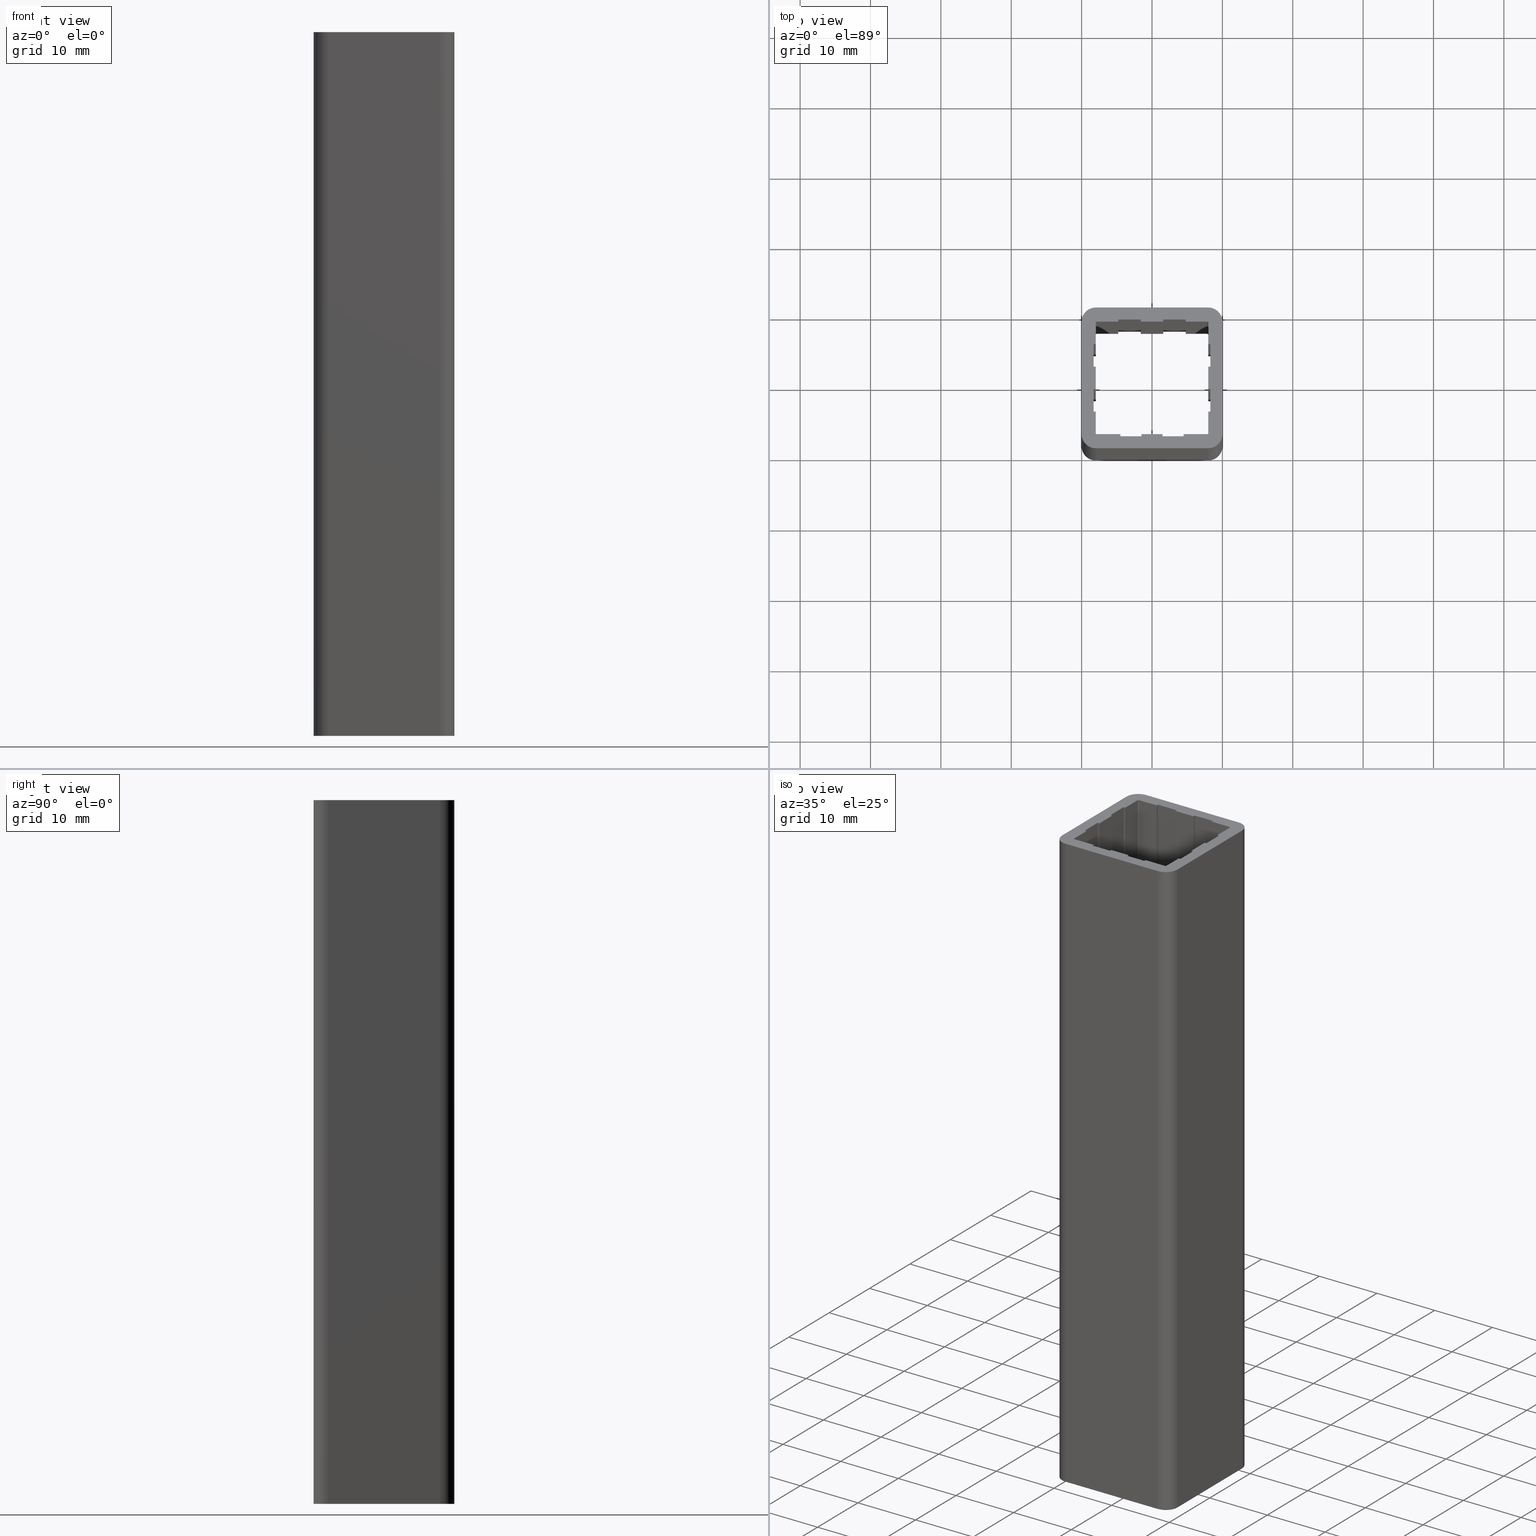
[diagram: canonical four-view strip — front | top / right | iso, engineering-drawing reading convention]
A machine part, canonical four-view strip (front | top / right | iso — engineering-drawing reading convention). The complete STEP part file that produces these views, byte-faithful:
ISO-10303-21;
HEADER;
/****************************************************************
 * Generated by software with PDE/Lib inside                    *
 * PDElib Version v4.4, created Mon 02/23/2004                  *
 * International Technegroup Inc. (www.iti-oh.com)              *
 ****************************************************************/
FILE_DESCRIPTION(('STEP AP203'),'2;1');
FILE_NAME('XB25120.stp','2011-03-21T16:28:09',(''),(''),'2009.3.110','THINKDESIGN','');
FILE_SCHEMA(('CONFIG_CONTROL_DESIGN'));
ENDSEC;
DATA;
#2=CARTESIAN_POINT('',(-18.0,-8.0,0.0));
#3=DIRECTION('',(0.0,0.0,1.0));
#4=DIRECTION('',(1.0,0.0,0.0));
#5=AXIS2_PLACEMENT_3D('',#2,#3,#4);
#6=CYLINDRICAL_SURFACE('',#5,2.0);
#7=CARTESIAN_POINT('',(-20.0,-8.0,0.0));
#8=VERTEX_POINT('',#7);
#9=CARTESIAN_POINT('',(-18.0,-10.0,0.0));
#10=VERTEX_POINT('',#9);
#11=CARTESIAN_POINT('',(-18.0,-8.0,0.0));
#12=DIRECTION('',(0.0,0.0,1.0));
#13=DIRECTION('',(1.0,0.0,0.0));
#14=AXIS2_PLACEMENT_3D('',#11,#12,#13);
#15=CIRCLE('',#14,2.0);
#16=EDGE_CURVE('',#8,#10,#15,.T.);
#17=ORIENTED_EDGE('',*,*,#16,.T.);
#18=CARTESIAN_POINT('',(-18.0,-10.0,100.0));
#19=VERTEX_POINT('',#18);
#20=CARTESIAN_POINT('',(-18.0,-10.0,0.0));
#21=DIRECTION('',(0.0,0.0,1.0));
#22=VECTOR('',#21,100.0);
#23=LINE('',#20,#22);
#24=EDGE_CURVE('',#10,#19,#23,.T.);
#25=ORIENTED_EDGE('',*,*,#24,.T.);
#26=CARTESIAN_POINT('',(-20.0,-8.0,100.0));
#27=VERTEX_POINT('',#26);
#28=CARTESIAN_POINT('',(-18.0,-8.0,100.0));
#29=DIRECTION('',(0.0,0.0,1.0));
#30=DIRECTION('',(1.0,0.0,0.0));
#31=AXIS2_PLACEMENT_3D('',#28,#29,#30);
#32=CIRCLE('',#31,2.0);
#33=EDGE_CURVE('',#27,#19,#32,.T.);
#34=ORIENTED_EDGE('',*,*,#33,.F.);
#35=CARTESIAN_POINT('',(-20.0,-8.0,0.0));
#36=DIRECTION('',(0.0,0.0,1.0));
#37=VECTOR('',#36,100.0);
#38=LINE('',#35,#37);
#39=EDGE_CURVE('',#8,#27,#38,.T.);
#40=ORIENTED_EDGE('',*,*,#39,.F.);
#41=EDGE_LOOP('',(#17,#25,#34,#40));
#42=FACE_OUTER_BOUND('',#41,.T.);
#43=ADVANCED_FACE('',(#42),#6,.T.);
#44=CARTESIAN_POINT('',(-18.0,-10.0,0.0));
#45=DIRECTION('',(0.0,-1.0,0.0));
#46=DIRECTION('',(1.0,0.0,0.0));
#47=AXIS2_PLACEMENT_3D('',#44,#45,#46);
#48=PLANE('',#47);
#49=CARTESIAN_POINT('',(-2.0,-10.0,0.0));
#50=VERTEX_POINT('',#49);
#51=CARTESIAN_POINT('',(-18.0,-10.0,0.0));
#52=DIRECTION('',(1.0,0.0,0.0));
#53=VECTOR('',#52,16.000000000000011);
#54=LINE('',#51,#53);
#55=EDGE_CURVE('',#10,#50,#54,.T.);
#56=ORIENTED_EDGE('',*,*,#55,.T.);
#57=CARTESIAN_POINT('',(-2.0,-10.0,100.0));
#58=VERTEX_POINT('',#57);
#59=CARTESIAN_POINT('',(-2.0,-10.0,0.0));
#60=DIRECTION('',(0.0,0.0,1.0));
#61=VECTOR('',#60,100.0);
#62=LINE('',#59,#61);
#63=EDGE_CURVE('',#50,#58,#62,.T.);
#64=ORIENTED_EDGE('',*,*,#63,.T.);
#65=CARTESIAN_POINT('',(-18.0,-10.0,100.0));
#66=DIRECTION('',(1.0,0.0,0.0));
#67=VECTOR('',#66,16.000000000000011);
#68=LINE('',#65,#67);
#69=EDGE_CURVE('',#19,#58,#68,.T.);
#70=ORIENTED_EDGE('',*,*,#69,.F.);
#71=ORIENTED_EDGE('',*,*,#24,.F.);
#72=EDGE_LOOP('',(#56,#64,#70,#71));
#73=FACE_OUTER_BOUND('',#72,.T.);
#74=ADVANCED_FACE('',(#73),#48,.T.);
#75=CARTESIAN_POINT('',(-2.0,-8.0,0.0));
#76=DIRECTION('',(0.0,0.0,1.0));
#77=DIRECTION('',(5.053215E-016,-1.0,0.0));
#78=AXIS2_PLACEMENT_3D('',#75,#76,#77);
#79=CYLINDRICAL_SURFACE('',#78,2.0);
#80=CARTESIAN_POINT('',(0.0,-8.0,0.0));
#81=VERTEX_POINT('',#80);
#82=CARTESIAN_POINT('',(-2.0,-8.0,0.0));
#83=DIRECTION('',(0.0,0.0,1.0));
#84=DIRECTION('',(1.0,0.0,0.0));
#85=AXIS2_PLACEMENT_3D('',#82,#83,#84);
#86=CIRCLE('',#85,2.0);
#87=EDGE_CURVE('',#50,#81,#86,.T.);
#88=ORIENTED_EDGE('',*,*,#87,.T.);
#89=CARTESIAN_POINT('',(0.0,-8.0,100.0));
#90=VERTEX_POINT('',#89);
#91=CARTESIAN_POINT('',(0.0,-8.0,0.0));
#92=DIRECTION('',(0.0,0.0,1.0));
#93=VECTOR('',#92,100.0);
#94=LINE('',#91,#93);
#95=EDGE_CURVE('',#81,#90,#94,.T.);
#96=ORIENTED_EDGE('',*,*,#95,.T.);
#97=CARTESIAN_POINT('',(-2.0,-8.0,100.0));
#98=DIRECTION('',(0.0,0.0,1.0));
#99=DIRECTION('',(1.0,0.0,0.0));
#100=AXIS2_PLACEMENT_3D('',#97,#98,#99);
#101=CIRCLE('',#100,2.0);
#102=EDGE_CURVE('',#58,#90,#101,.T.);
#103=ORIENTED_EDGE('',*,*,#102,.F.);
#104=ORIENTED_EDGE('',*,*,#63,.F.);
#105=EDGE_LOOP('',(#88,#96,#103,#104));
#106=FACE_OUTER_BOUND('',#105,.T.);
#107=ADVANCED_FACE('',(#106),#79,.T.);
#108=CARTESIAN_POINT('',(0.0,-8.0,0.0));
#109=DIRECTION('',(1.0,0.0,0.0));
#110=DIRECTION('',(0.0,1.0,0.0));
#111=AXIS2_PLACEMENT_3D('',#108,#109,#110);
#112=PLANE('',#111);
#113=CARTESIAN_POINT('',(0.0,8.0,0.0));
#114=VERTEX_POINT('',#113);
#115=CARTESIAN_POINT('',(0.0,-8.0,0.0));
#116=DIRECTION('',(0.0,1.0,0.0));
#117=VECTOR('',#116,16.0);
#118=LINE('',#115,#117);
#119=EDGE_CURVE('',#81,#114,#118,.T.);
#120=ORIENTED_EDGE('',*,*,#119,.T.);
#121=CARTESIAN_POINT('',(0.0,8.0,100.0));
#122=VERTEX_POINT('',#121);
#123=CARTESIAN_POINT('',(0.0,8.0,0.0));
#124=DIRECTION('',(0.0,0.0,1.0));
#125=VECTOR('',#124,100.0);
#126=LINE('',#123,#125);
#127=EDGE_CURVE('',#114,#122,#126,.T.);
#128=ORIENTED_EDGE('',*,*,#127,.T.);
#129=CARTESIAN_POINT('',(0.0,-8.0,100.0));
#130=DIRECTION('',(0.0,1.0,0.0));
#131=VECTOR('',#130,16.0);
#132=LINE('',#129,#131);
#133=EDGE_CURVE('',#90,#122,#132,.T.);
#134=ORIENTED_EDGE('',*,*,#133,.F.);
#135=ORIENTED_EDGE('',*,*,#95,.F.);
#136=EDGE_LOOP('',(#120,#128,#134,#135));
#137=FACE_OUTER_BOUND('',#136,.T.);
#138=ADVANCED_FACE('',(#137),#112,.T.);
#139=CARTESIAN_POINT('',(-2.0,8.0,0.0));
#140=DIRECTION('',(0.0,0.0,1.0));
#141=DIRECTION('',(1.0,0.0,0.0));
#142=AXIS2_PLACEMENT_3D('',#139,#140,#141);
#143=CYLINDRICAL_SURFACE('',#142,2.0);
#144=CARTESIAN_POINT('',(-2.0,10.0,0.0));
#145=VERTEX_POINT('',#144);
#146=CARTESIAN_POINT('',(-2.0,8.0,0.0));
#147=DIRECTION('',(0.0,0.0,1.0));
#148=DIRECTION('',(1.0,0.0,0.0));
#149=AXIS2_PLACEMENT_3D('',#146,#147,#148);
#150=CIRCLE('',#149,2.0);
#151=EDGE_CURVE('',#114,#145,#150,.T.);
#152=ORIENTED_EDGE('',*,*,#151,.T.);
#153=CARTESIAN_POINT('',(-2.0,10.0,100.0));
#154=VERTEX_POINT('',#153);
#155=CARTESIAN_POINT('',(-2.0,10.0,0.0));
#156=DIRECTION('',(0.0,0.0,1.0));
#157=VECTOR('',#156,100.0);
#158=LINE('',#155,#157);
#159=EDGE_CURVE('',#145,#154,#158,.T.);
#160=ORIENTED_EDGE('',*,*,#159,.T.);
#161=CARTESIAN_POINT('',(-2.0,8.0,100.0));
#162=DIRECTION('',(0.0,0.0,1.0));
#163=DIRECTION('',(1.0,0.0,0.0));
#164=AXIS2_PLACEMENT_3D('',#161,#162,#163);
#165=CIRCLE('',#164,2.0);
#166=EDGE_CURVE('',#122,#154,#165,.T.);
#167=ORIENTED_EDGE('',*,*,#166,.F.);
#168=ORIENTED_EDGE('',*,*,#127,.F.);
#169=EDGE_LOOP('',(#152,#160,#167,#168));
#170=FACE_OUTER_BOUND('',#169,.T.);
#171=ADVANCED_FACE('',(#170),#143,.T.);
#172=CARTESIAN_POINT('',(-2.0,10.0,0.0));
#173=DIRECTION('',(0.0,1.0,0.0));
#174=DIRECTION('',(-1.0,0.0,0.0));
#175=AXIS2_PLACEMENT_3D('',#172,#173,#174);
#176=PLANE('',#175);
#177=CARTESIAN_POINT('',(-18.0,10.0,0.0));
#178=VERTEX_POINT('',#177);
#179=CARTESIAN_POINT('',(-1.999999999999989,10.0,0.0));
#180=DIRECTION('',(-1.0,0.0,0.0));
#181=VECTOR('',#180,16.000000000000011);
#182=LINE('',#179,#181);
#183=EDGE_CURVE('',#145,#178,#182,.T.);
#184=ORIENTED_EDGE('',*,*,#183,.T.);
#185=CARTESIAN_POINT('',(-18.0,10.0,100.0));
#186=VERTEX_POINT('',#185);
#187=CARTESIAN_POINT('',(-18.0,10.0,0.0));
#188=DIRECTION('',(0.0,0.0,1.0));
#189=VECTOR('',#188,100.0);
#190=LINE('',#187,#189);
#191=EDGE_CURVE('',#178,#186,#190,.T.);
#192=ORIENTED_EDGE('',*,*,#191,.T.);
#193=CARTESIAN_POINT('',(-1.999999999999989,10.0,100.0));
#194=DIRECTION('',(-1.0,0.0,0.0));
#195=VECTOR('',#194,16.000000000000011);
#196=LINE('',#193,#195);
#197=EDGE_CURVE('',#154,#186,#196,.T.);
#198=ORIENTED_EDGE('',*,*,#197,.F.);
#199=ORIENTED_EDGE('',*,*,#159,.F.);
#200=EDGE_LOOP('',(#184,#192,#198,#199));
#201=FACE_OUTER_BOUND('',#200,.T.);
#202=ADVANCED_FACE('',(#201),#176,.T.);
#203=CARTESIAN_POINT('',(-18.0,8.0,0.0));
#204=DIRECTION('',(0.0,0.0,1.0));
#205=DIRECTION('',(1.0,0.0,0.0));
#206=AXIS2_PLACEMENT_3D('',#203,#204,#205);
#207=CYLINDRICAL_SURFACE('',#206,2.0);
#208=CARTESIAN_POINT('',(-20.0,8.0,0.0));
#209=VERTEX_POINT('',#208);
#210=CARTESIAN_POINT('',(-18.0,8.0,0.0));
#211=DIRECTION('',(0.0,0.0,1.0));
#212=DIRECTION('',(1.0,0.0,0.0));
#213=AXIS2_PLACEMENT_3D('',#210,#211,#212);
#214=CIRCLE('',#213,2.0);
#215=EDGE_CURVE('',#178,#209,#214,.T.);
#216=ORIENTED_EDGE('',*,*,#215,.T.);
#217=CARTESIAN_POINT('',(-20.0,8.0,100.0));
#218=VERTEX_POINT('',#217);
#219=CARTESIAN_POINT('',(-20.0,8.0,0.0));
#220=DIRECTION('',(0.0,0.0,1.0));
#221=VECTOR('',#220,100.0);
#222=LINE('',#219,#221);
#223=EDGE_CURVE('',#209,#218,#222,.T.);
#224=ORIENTED_EDGE('',*,*,#223,.T.);
#225=CARTESIAN_POINT('',(-18.0,8.0,100.0));
#226=DIRECTION('',(0.0,0.0,1.0));
#227=DIRECTION('',(1.0,0.0,0.0));
#228=AXIS2_PLACEMENT_3D('',#225,#226,#227);
#229=CIRCLE('',#228,2.0);
#230=EDGE_CURVE('',#186,#218,#229,.T.);
#231=ORIENTED_EDGE('',*,*,#230,.F.);
#232=ORIENTED_EDGE('',*,*,#191,.F.);
#233=EDGE_LOOP('',(#216,#224,#231,#232));
#234=FACE_OUTER_BOUND('',#233,.T.);
#235=ADVANCED_FACE('',(#234),#207,.T.);
#236=CARTESIAN_POINT('',(-20.0,8.0,0.0));
#237=DIRECTION('',(-1.0,0.0,0.0));
#238=DIRECTION('',(0.0,-1.0,0.0));
#239=AXIS2_PLACEMENT_3D('',#236,#237,#238);
#240=PLANE('',#239);
#241=CARTESIAN_POINT('',(-20.0,8.0,0.0));
#242=DIRECTION('',(0.0,-1.0,0.0));
#243=VECTOR('',#242,16.0);
#244=LINE('',#241,#243);
#245=EDGE_CURVE('',#209,#8,#244,.T.);
#246=ORIENTED_EDGE('',*,*,#245,.T.);
#247=ORIENTED_EDGE('',*,*,#39,.T.);
#248=CARTESIAN_POINT('',(-20.0,8.0,100.0));
#249=DIRECTION('',(0.0,-1.0,0.0));
#250=VECTOR('',#249,16.0);
#251=LINE('',#248,#250);
#252=EDGE_CURVE('',#218,#27,#251,.T.);
#253=ORIENTED_EDGE('',*,*,#252,.F.);
#254=ORIENTED_EDGE('',*,*,#223,.F.);
#255=EDGE_LOOP('',(#246,#247,#253,#254));
#256=FACE_OUTER_BOUND('',#255,.T.);
#257=ADVANCED_FACE('',(#256),#240,.T.);
#258=CARTESIAN_POINT('',(-2.160000000000196,-8.0,0.0));
#259=DIRECTION('',(0.0,1.0,0.0));
#260=DIRECTION('',(-1.0,0.0,0.0));
#261=AXIS2_PLACEMENT_3D('',#258,#259,#260);
#262=PLANE('',#261);
#263=CARTESIAN_POINT('',(-2.160000000000196,-8.0,0.0));
#264=VERTEX_POINT('',#263);
#265=CARTESIAN_POINT('',(-5.500000000000000,-8.0,0.0));
#266=VERTEX_POINT('',#265);
#267=CARTESIAN_POINT('',(-2.160000000000218,-8.0,0.0));
#268=DIRECTION('',(-1.0,0.0,0.0));
#269=VECTOR('',#268,3.339999999999782);
#270=LINE('',#267,#269);
#271=EDGE_CURVE('',#264,#266,#270,.T.);
#272=ORIENTED_EDGE('',*,*,#271,.T.);
#273=CARTESIAN_POINT('',(-5.500000000000000,-8.0,100.0));
#274=VERTEX_POINT('',#273);
#275=CARTESIAN_POINT('',(-5.500000000000000,-8.0,0.0));
#276=DIRECTION('',(0.0,0.0,1.0));
#277=VECTOR('',#276,100.0);
#278=LINE('',#275,#277);
#279=EDGE_CURVE('',#266,#274,#278,.T.);
#280=ORIENTED_EDGE('',*,*,#279,.T.);
#281=CARTESIAN_POINT('',(-2.160000000000196,-8.0,100.0));
#282=VERTEX_POINT('',#281);
#283=CARTESIAN_POINT('',(-2.160000000000218,-8.0,100.0));
#284=DIRECTION('',(-1.0,0.0,0.0));
#285=VECTOR('',#284,3.339999999999782);
#286=LINE('',#283,#285);
#287=EDGE_CURVE('',#282,#274,#286,.T.);
#288=ORIENTED_EDGE('',*,*,#287,.F.);
#289=CARTESIAN_POINT('',(-2.160000000000196,-8.0,0.0));
#290=DIRECTION('',(0.0,0.0,1.0));
#291=VECTOR('',#290,100.0);
#292=LINE('',#289,#291);
#293=EDGE_CURVE('',#264,#282,#292,.T.);
#294=ORIENTED_EDGE('',*,*,#293,.F.);
#295=EDGE_LOOP('',(#272,#280,#288,#294));
#296=FACE_OUTER_BOUND('',#295,.T.);
#297=ADVANCED_FACE('',(#296),#262,.T.);
#298=CARTESIAN_POINT('',(-5.500000000000000,-8.0,0.0));
#299=DIRECTION('',(-1.0,0.0,0.0));
#300=DIRECTION('',(0.0,-1.0,0.0));
#301=AXIS2_PLACEMENT_3D('',#298,#299,#300);
#302=PLANE('',#301);
#303=CARTESIAN_POINT('',(-5.500000000000000,-8.299999999999955,0.0));
#304=VERTEX_POINT('',#303);
#305=CARTESIAN_POINT('',(-5.500000000000000,-7.999999999999955,0.0));
#306=DIRECTION('',(0.0,-1.0,0.0));
#307=VECTOR('',#306,0.300000000000000);
#308=LINE('',#305,#307);
#309=EDGE_CURVE('',#266,#304,#308,.T.);
#310=ORIENTED_EDGE('',*,*,#309,.T.);
#311=CARTESIAN_POINT('',(-5.500000000000000,-8.299999999999955,100.0));
#312=VERTEX_POINT('',#311);
#313=CARTESIAN_POINT('',(-5.500000000000000,-8.299999999999955,0.0));
#314=DIRECTION('',(0.0,0.0,1.0));
#315=VECTOR('',#314,100.0);
#316=LINE('',#313,#315);
#317=EDGE_CURVE('',#304,#312,#316,.T.);
#318=ORIENTED_EDGE('',*,*,#317,.T.);
#319=CARTESIAN_POINT('',(-5.500000000000000,-7.999999999999955,100.0));
#320=DIRECTION('',(0.0,-1.0,0.0));
#321=VECTOR('',#320,0.300000000000000);
#322=LINE('',#319,#321);
#323=EDGE_CURVE('',#274,#312,#322,.T.);
#324=ORIENTED_EDGE('',*,*,#323,.F.);
#325=ORIENTED_EDGE('',*,*,#279,.F.);
#326=EDGE_LOOP('',(#310,#318,#324,#325));
#327=FACE_OUTER_BOUND('',#326,.T.);
#328=ADVANCED_FACE('',(#327),#302,.T.);
#329=CARTESIAN_POINT('',(-5.500000000000000,-8.299999999999955,0.0));
#330=DIRECTION('',(0.0,1.0,0.0));
#331=DIRECTION('',(-1.0,0.0,0.0));
#332=AXIS2_PLACEMENT_3D('',#329,#330,#331);
#333=PLANE('',#332);
#334=CARTESIAN_POINT('',(-8.500000000000000,-8.299999999999955,0.0));
#335=VERTEX_POINT('',#334);
#336=CARTESIAN_POINT('',(-5.500000000000000,-8.299999999999955,0.0));
#337=DIRECTION('',(-1.0,0.0,0.0));
#338=VECTOR('',#337,3.0);
#339=LINE('',#336,#338);
#340=EDGE_CURVE('',#304,#335,#339,.T.);
#341=ORIENTED_EDGE('',*,*,#340,.T.);
#342=CARTESIAN_POINT('',(-8.500000000000000,-8.299999999999955,100.0));
#343=VERTEX_POINT('',#342);
#344=CARTESIAN_POINT('',(-8.500000000000000,-8.299999999999955,0.0));
#345=DIRECTION('',(0.0,0.0,1.0));
#346=VECTOR('',#345,100.0);
#347=LINE('',#344,#346);
#348=EDGE_CURVE('',#335,#343,#347,.T.);
#349=ORIENTED_EDGE('',*,*,#348,.T.);
#350=CARTESIAN_POINT('',(-5.500000000000000,-8.299999999999955,100.0));
#351=DIRECTION('',(-1.0,0.0,0.0));
#352=VECTOR('',#351,3.0);
#353=LINE('',#350,#352);
#354=EDGE_CURVE('',#312,#343,#353,.T.);
#355=ORIENTED_EDGE('',*,*,#354,.F.);
#356=ORIENTED_EDGE('',*,*,#317,.F.);
#357=EDGE_LOOP('',(#341,#349,#355,#356));
#358=FACE_OUTER_BOUND('',#357,.T.);
#359=ADVANCED_FACE('',(#358),#333,.T.);
#360=CARTESIAN_POINT('',(-8.500000000000000,-8.299999999999955,0.0));
#361=DIRECTION('',(1.0,0.0,0.0));
#362=DIRECTION('',(0.0,1.0,0.0));
#363=AXIS2_PLACEMENT_3D('',#360,#361,#362);
#364=PLANE('',#363);
#365=CARTESIAN_POINT('',(-8.500000000000000,-8.0,0.0));
#366=VERTEX_POINT('',#365);
#367=CARTESIAN_POINT('',(-8.500000000000000,-8.300000000000001,0.0));
#368=DIRECTION('',(0.0,1.0,0.0));
#369=VECTOR('',#368,0.300000000000001);
#370=LINE('',#367,#369);
#371=EDGE_CURVE('',#335,#366,#370,.T.);
#372=ORIENTED_EDGE('',*,*,#371,.T.);
#373=CARTESIAN_POINT('',(-8.500000000000000,-8.0,100.0));
#374=VERTEX_POINT('',#373);
#375=CARTESIAN_POINT('',(-8.500000000000000,-8.0,0.0));
#376=DIRECTION('',(0.0,0.0,1.0));
#377=VECTOR('',#376,100.0);
#378=LINE('',#375,#377);
#379=EDGE_CURVE('',#366,#374,#378,.T.);
#380=ORIENTED_EDGE('',*,*,#379,.T.);
#381=CARTESIAN_POINT('',(-8.500000000000000,-8.300000000000001,100.0));
#382=DIRECTION('',(0.0,1.0,0.0));
#383=VECTOR('',#382,0.300000000000001);
#384=LINE('',#381,#383);
#385=EDGE_CURVE('',#343,#374,#384,.T.);
#386=ORIENTED_EDGE('',*,*,#385,.F.);
#387=ORIENTED_EDGE('',*,*,#348,.F.);
#388=EDGE_LOOP('',(#372,#380,#386,#387));
#389=FACE_OUTER_BOUND('',#388,.T.);
#390=ADVANCED_FACE('',(#389),#364,.T.);
#391=CARTESIAN_POINT('',(-8.500000000000000,-8.0,0.0));
#392=DIRECTION('',(0.0,1.0,0.0));
#393=DIRECTION('',(-1.0,0.0,0.0));
#394=AXIS2_PLACEMENT_3D('',#391,#392,#393);
#395=PLANE('',#394);
#396=CARTESIAN_POINT('',(-11.500000000000000,-8.0,0.0));
#397=VERTEX_POINT('',#396);
#398=CARTESIAN_POINT('',(-8.500000000000011,-8.0,0.0));
#399=DIRECTION('',(-1.0,0.0,0.0));
#400=VECTOR('',#399,2.999999999999989);
#401=LINE('',#398,#400);
#402=EDGE_CURVE('',#366,#397,#401,.T.);
#403=ORIENTED_EDGE('',*,*,#402,.T.);
#404=CARTESIAN_POINT('',(-11.500000000000000,-8.0,100.0));
#405=VERTEX_POINT('',#404);
#406=CARTESIAN_POINT('',(-11.500000000000000,-8.0,0.0));
#407=DIRECTION('',(0.0,0.0,1.0));
#408=VECTOR('',#407,100.0);
#409=LINE('',#406,#408);
#410=EDGE_CURVE('',#397,#405,#409,.T.);
#411=ORIENTED_EDGE('',*,*,#410,.T.);
#412=CARTESIAN_POINT('',(-8.500000000000011,-8.0,100.0));
#413=DIRECTION('',(-1.0,0.0,0.0));
#414=VECTOR('',#413,2.999999999999989);
#415=LINE('',#412,#414);
#416=EDGE_CURVE('',#374,#405,#415,.T.);
#417=ORIENTED_EDGE('',*,*,#416,.F.);
#418=ORIENTED_EDGE('',*,*,#379,.F.);
#419=EDGE_LOOP('',(#403,#411,#417,#418));
#420=FACE_OUTER_BOUND('',#419,.T.);
#421=ADVANCED_FACE('',(#420),#395,.T.);
#422=CARTESIAN_POINT('',(-11.500000000000000,-8.0,0.0));
#423=DIRECTION('',(-1.0,0.0,0.0));
#424=DIRECTION('',(0.0,-1.0,0.0));
#425=AXIS2_PLACEMENT_3D('',#422,#423,#424);
#426=PLANE('',#425);
#427=CARTESIAN_POINT('',(-11.500000000000000,-8.299999999999955,0.0));
#428=VERTEX_POINT('',#427);
#429=CARTESIAN_POINT('',(-11.500000000000000,-7.999999999999955,0.0));
#430=DIRECTION('',(0.0,-1.0,0.0));
#431=VECTOR('',#430,0.300000000000000);
#432=LINE('',#429,#431);
#433=EDGE_CURVE('',#397,#428,#432,.T.);
#434=ORIENTED_EDGE('',*,*,#433,.T.);
#435=CARTESIAN_POINT('',(-11.500000000000000,-8.299999999999955,100.0));
#436=VERTEX_POINT('',#435);
#437=CARTESIAN_POINT('',(-11.500000000000000,-8.299999999999955,0.0));
#438=DIRECTION('',(0.0,0.0,1.0));
#439=VECTOR('',#438,100.0);
#440=LINE('',#437,#439);
#441=EDGE_CURVE('',#428,#436,#440,.T.);
#442=ORIENTED_EDGE('',*,*,#441,.T.);
#443=CARTESIAN_POINT('',(-11.500000000000000,-7.999999999999955,100.0));
#444=DIRECTION('',(0.0,-1.0,0.0));
#445=VECTOR('',#444,0.300000000000000);
#446=LINE('',#443,#445);
#447=EDGE_CURVE('',#405,#436,#446,.T.);
#448=ORIENTED_EDGE('',*,*,#447,.F.);
#449=ORIENTED_EDGE('',*,*,#410,.F.);
#450=EDGE_LOOP('',(#434,#442,#448,#449));
#451=FACE_OUTER_BOUND('',#450,.T.);
#452=ADVANCED_FACE('',(#451),#426,.T.);
#453=CARTESIAN_POINT('',(-11.500000000000000,-8.299999999999955,0.0));
#454=DIRECTION('',(0.0,1.0,0.0));
#455=DIRECTION('',(-1.0,0.0,0.0));
#456=AXIS2_PLACEMENT_3D('',#453,#454,#455);
#457=PLANE('',#456);
#458=CARTESIAN_POINT('',(-14.500000000000000,-8.299999999999955,0.0));
#459=VERTEX_POINT('',#458);
#460=CARTESIAN_POINT('',(-11.500000000000000,-8.299999999999955,0.0));
#461=DIRECTION('',(-1.0,0.0,0.0));
#462=VECTOR('',#461,3.0);
#463=LINE('',#460,#462);
#464=EDGE_CURVE('',#428,#459,#463,.T.);
#465=ORIENTED_EDGE('',*,*,#464,.T.);
#466=CARTESIAN_POINT('',(-14.500000000000000,-8.299999999999955,100.0));
#467=VERTEX_POINT('',#466);
#468=CARTESIAN_POINT('',(-14.500000000000000,-8.299999999999955,0.0));
#469=DIRECTION('',(0.0,0.0,1.0));
#470=VECTOR('',#469,100.0);
#471=LINE('',#468,#470);
#472=EDGE_CURVE('',#459,#467,#471,.T.);
#473=ORIENTED_EDGE('',*,*,#472,.T.);
#474=CARTESIAN_POINT('',(-11.500000000000000,-8.299999999999955,100.0));
#475=DIRECTION('',(-1.0,0.0,0.0));
#476=VECTOR('',#475,3.0);
#477=LINE('',#474,#476);
#478=EDGE_CURVE('',#436,#467,#477,.T.);
#479=ORIENTED_EDGE('',*,*,#478,.F.);
#480=ORIENTED_EDGE('',*,*,#441,.F.);
#481=EDGE_LOOP('',(#465,#473,#479,#480));
#482=FACE_OUTER_BOUND('',#481,.T.);
#483=ADVANCED_FACE('',(#482),#457,.T.);
#484=CARTESIAN_POINT('',(-14.500000000000000,-8.299999999999955,0.0));
#485=DIRECTION('',(1.0,0.0,0.0));
#486=DIRECTION('',(0.0,1.0,0.0));
#487=AXIS2_PLACEMENT_3D('',#484,#485,#486);
#488=PLANE('',#487);
#489=CARTESIAN_POINT('',(-14.500000000000000,-8.0,0.0));
#490=VERTEX_POINT('',#489);
#491=CARTESIAN_POINT('',(-14.500000000000000,-8.300000000000001,0.0));
#492=DIRECTION('',(0.0,1.0,0.0));
#493=VECTOR('',#492,0.300000000000001);
#494=LINE('',#491,#493);
#495=EDGE_CURVE('',#459,#490,#494,.T.);
#496=ORIENTED_EDGE('',*,*,#495,.T.);
#497=CARTESIAN_POINT('',(-14.500000000000000,-8.0,100.0));
#498=VERTEX_POINT('',#497);
#499=CARTESIAN_POINT('',(-14.500000000000000,-8.0,0.0));
#500=DIRECTION('',(0.0,0.0,1.0));
#501=VECTOR('',#500,100.0);
#502=LINE('',#499,#501);
#503=EDGE_CURVE('',#490,#498,#502,.T.);
#504=ORIENTED_EDGE('',*,*,#503,.T.);
#505=CARTESIAN_POINT('',(-14.500000000000000,-8.300000000000001,100.0));
#506=DIRECTION('',(0.0,1.0,0.0));
#507=VECTOR('',#506,0.300000000000001);
#508=LINE('',#505,#507);
#509=EDGE_CURVE('',#467,#498,#508,.T.);
#510=ORIENTED_EDGE('',*,*,#509,.F.);
#511=ORIENTED_EDGE('',*,*,#472,.F.);
#512=EDGE_LOOP('',(#496,#504,#510,#511));
#513=FACE_OUTER_BOUND('',#512,.T.);
#514=ADVANCED_FACE('',(#513),#488,.T.);
#515=CARTESIAN_POINT('',(-14.500000000000000,-8.0,0.0));
#516=DIRECTION('',(0.0,1.0,0.0));
#517=DIRECTION('',(-1.0,0.0,0.0));
#518=AXIS2_PLACEMENT_3D('',#515,#516,#517);
#519=PLANE('',#518);
#520=CARTESIAN_POINT('',(-17.840000000000146,-8.000000000000227,0.0));
#521=VERTEX_POINT('',#520);
#522=CARTESIAN_POINT('',(-14.500000000000000,-8.0,0.0));
#523=DIRECTION('',(-1.0,0.0,0.0));
#524=VECTOR('',#523,3.340000000000146);
#525=LINE('',#522,#524);
#526=EDGE_CURVE('',#490,#521,#525,.T.);
#527=ORIENTED_EDGE('',*,*,#526,.T.);
#528=CARTESIAN_POINT('',(-17.840000000000146,-8.000000000000227,100.0));
#529=VERTEX_POINT('',#528);
#530=CARTESIAN_POINT('',(-17.840000000000146,-8.000000000000227,0.0));
#531=DIRECTION('',(0.0,0.0,1.0));
#532=VECTOR('',#531,100.0);
#533=LINE('',#530,#532);
#534=EDGE_CURVE('',#521,#529,#533,.T.);
#535=ORIENTED_EDGE('',*,*,#534,.T.);
#536=CARTESIAN_POINT('',(-14.500000000000000,-8.0,100.0));
#537=DIRECTION('',(-1.0,0.0,0.0));
#538=VECTOR('',#537,3.340000000000146);
#539=LINE('',#536,#538);
#540=EDGE_CURVE('',#498,#529,#539,.T.);
#541=ORIENTED_EDGE('',*,*,#540,.F.);
#542=ORIENTED_EDGE('',*,*,#503,.F.);
#543=EDGE_LOOP('',(#527,#535,#541,#542));
#544=FACE_OUTER_BOUND('',#543,.T.);
#545=ADVANCED_FACE('',(#544),#519,.T.);
#546=CARTESIAN_POINT('',(-17.840000000000146,-7.840000000000146,0.0));
#547=DIRECTION('',(0.0,0.0,-1.0));
#548=DIRECTION('',(-1.960054E-015,-1.0,0.0));
#549=AXIS2_PLACEMENT_3D('',#546,#547,#548);
#550=CYLINDRICAL_SURFACE('',#549,0.160000000000000);
#551=CARTESIAN_POINT('',(-18.000000000000341,-7.840000000000146,0.0));
#552=VERTEX_POINT('',#551);
#553=CARTESIAN_POINT('',(-17.840000000000146,-7.840000000000146,0.0));
#554=DIRECTION('',(0.0,0.0,-1.0));
#555=DIRECTION('',(1.0,0.0,0.0));
#556=AXIS2_PLACEMENT_3D('',#553,#554,#555);
#557=CIRCLE('',#556,0.160000000000000);
#558=EDGE_CURVE('',#521,#552,#557,.T.);
#559=ORIENTED_EDGE('',*,*,#558,.T.);
#560=CARTESIAN_POINT('',(-18.000000000000341,-7.840000000000146,100.0));
#561=VERTEX_POINT('',#560);
#562=CARTESIAN_POINT('',(-18.000000000000341,-7.840000000000146,0.0));
#563=DIRECTION('',(0.0,0.0,1.0));
#564=VECTOR('',#563,100.0);
#565=LINE('',#562,#564);
#566=EDGE_CURVE('',#552,#561,#565,.T.);
#567=ORIENTED_EDGE('',*,*,#566,.T.);
#568=CARTESIAN_POINT('',(-17.840000000000146,-7.840000000000146,100.0));
#569=DIRECTION('',(0.0,0.0,-1.0));
#570=DIRECTION('',(1.0,0.0,0.0));
#571=AXIS2_PLACEMENT_3D('',#568,#569,#570);
#572=CIRCLE('',#571,0.160000000000000);
#573=EDGE_CURVE('',#529,#561,#572,.T.);
#574=ORIENTED_EDGE('',*,*,#573,.F.);
#575=ORIENTED_EDGE('',*,*,#534,.F.);
#576=EDGE_LOOP('',(#559,#567,#574,#575));
#577=FACE_OUTER_BOUND('',#576,.T.);
#578=ADVANCED_FACE('',(#577),#550,.F.);
#579=CARTESIAN_POINT('',(-18.000000000000341,-7.840000000000146,0.0));
#580=DIRECTION('',(1.0,0.0,0.0));
#581=DIRECTION('',(0.0,1.0,0.0));
#582=AXIS2_PLACEMENT_3D('',#579,#580,#581);
#583=PLANE('',#582);
#584=CARTESIAN_POINT('',(-18.000000000000341,-4.799999999999955,0.0));
#585=VERTEX_POINT('',#584);
#586=CARTESIAN_POINT('',(-18.000000000000341,-7.840000000000055,0.0));
#587=DIRECTION('',(0.0,1.0,0.0));
#588=VECTOR('',#587,3.040000000000100);
#589=LINE('',#586,#588);
#590=EDGE_CURVE('',#552,#585,#589,.T.);
#591=ORIENTED_EDGE('',*,*,#590,.T.);
#592=CARTESIAN_POINT('',(-18.000000000000341,-4.799999999999955,100.0));
#593=VERTEX_POINT('',#592);
#594=CARTESIAN_POINT('',(-18.000000000000341,-4.799999999999955,0.0));
#595=DIRECTION('',(0.0,0.0,1.0));
#596=VECTOR('',#595,100.0);
#597=LINE('',#594,#596);
#598=EDGE_CURVE('',#585,#593,#597,.T.);
#599=ORIENTED_EDGE('',*,*,#598,.T.);
#600=CARTESIAN_POINT('',(-18.000000000000341,-7.840000000000055,100.0));
#601=DIRECTION('',(0.0,1.0,0.0));
#602=VECTOR('',#601,3.040000000000100);
#603=LINE('',#600,#602);
#604=EDGE_CURVE('',#561,#593,#603,.T.);
#605=ORIENTED_EDGE('',*,*,#604,.F.);
#606=ORIENTED_EDGE('',*,*,#566,.F.);
#607=EDGE_LOOP('',(#591,#599,#605,#606));
#608=FACE_OUTER_BOUND('',#607,.T.);
#609=ADVANCED_FACE('',(#608),#583,.T.);
#610=CARTESIAN_POINT('',(-18.000000000000341,-4.799999999999955,0.0));
#611=DIRECTION('',(0.0,1.0,0.0));
#612=DIRECTION('',(-1.0,0.0,0.0));
#613=AXIS2_PLACEMENT_3D('',#610,#611,#612);
#614=PLANE('',#613);
#615=CARTESIAN_POINT('',(-18.300000000000409,-4.799999999999955,0.0));
#616=VERTEX_POINT('',#615);
#617=CARTESIAN_POINT('',(-18.000000000000398,-4.799999999999955,0.0));
#618=DIRECTION('',(-1.0,0.0,0.0));
#619=VECTOR('',#618,0.300000000000011);
#620=LINE('',#617,#619);
#621=EDGE_CURVE('',#585,#616,#620,.T.);
#622=ORIENTED_EDGE('',*,*,#621,.T.);
#623=CARTESIAN_POINT('',(-18.300000000000409,-4.799999999999955,100.0));
#624=VERTEX_POINT('',#623);
#625=CARTESIAN_POINT('',(-18.300000000000409,-4.799999999999955,0.0));
#626=DIRECTION('',(0.0,0.0,1.0));
#627=VECTOR('',#626,100.0);
#628=LINE('',#625,#627);
#629=EDGE_CURVE('',#616,#624,#628,.T.);
#630=ORIENTED_EDGE('',*,*,#629,.T.);
#631=CARTESIAN_POINT('',(-18.000000000000398,-4.799999999999955,100.0));
#632=DIRECTION('',(-1.0,0.0,0.0));
#633=VECTOR('',#632,0.300000000000011);
#634=LINE('',#631,#633);
#635=EDGE_CURVE('',#593,#624,#634,.T.);
#636=ORIENTED_EDGE('',*,*,#635,.F.);
#637=ORIENTED_EDGE('',*,*,#598,.F.);
#638=EDGE_LOOP('',(#622,#630,#636,#637));
#639=FACE_OUTER_BOUND('',#638,.T.);
#640=ADVANCED_FACE('',(#639),#614,.T.);
#641=CARTESIAN_POINT('',(-18.300000000000409,-4.799999999999955,0.0));
#642=DIRECTION('',(1.0,0.0,0.0));
#643=DIRECTION('',(0.0,1.0,0.0));
#644=AXIS2_PLACEMENT_3D('',#641,#642,#643);
#645=PLANE('',#644);
#646=CARTESIAN_POINT('',(-18.300000000000296,-1.599999999999909,0.0));
#647=VERTEX_POINT('',#646);
#648=CARTESIAN_POINT('',(-18.300000000000409,-4.799999999999909,0.0));
#649=DIRECTION('',(0.0,1.0,0.0));
#650=VECTOR('',#649,3.200000000000000);
#651=LINE('',#648,#650);
#652=EDGE_CURVE('',#616,#647,#651,.T.);
#653=ORIENTED_EDGE('',*,*,#652,.T.);
#654=CARTESIAN_POINT('',(-18.300000000000296,-1.599999999999909,100.0));
#655=VERTEX_POINT('',#654);
#656=CARTESIAN_POINT('',(-18.300000000000296,-1.599999999999909,0.0));
#657=DIRECTION('',(0.0,0.0,1.0));
#658=VECTOR('',#657,100.0);
#659=LINE('',#656,#658);
#660=EDGE_CURVE('',#647,#655,#659,.T.);
#661=ORIENTED_EDGE('',*,*,#660,.T.);
#662=CARTESIAN_POINT('',(-18.300000000000409,-4.799999999999909,100.0));
#663=DIRECTION('',(0.0,1.0,0.0));
#664=VECTOR('',#663,3.200000000000000);
#665=LINE('',#662,#664);
#666=EDGE_CURVE('',#624,#655,#665,.T.);
#667=ORIENTED_EDGE('',*,*,#666,.F.);
#668=ORIENTED_EDGE('',*,*,#629,.F.);
#669=EDGE_LOOP('',(#653,#661,#667,#668));
#670=FACE_OUTER_BOUND('',#669,.T.);
#671=ADVANCED_FACE('',(#670),#645,.T.);
#672=CARTESIAN_POINT('',(-18.300000000000296,-1.599999999999909,0.0));
#673=DIRECTION('',(0.0,-1.0,0.0));
#674=DIRECTION('',(1.0,0.0,0.0));
#675=AXIS2_PLACEMENT_3D('',#672,#673,#674);
#676=PLANE('',#675);
#677=CARTESIAN_POINT('',(-18.000000000000341,-1.599999999999909,0.0));
#678=VERTEX_POINT('',#677);
#679=CARTESIAN_POINT('',(-18.300000000000352,-1.599999999999909,0.0));
#680=DIRECTION('',(1.0,0.0,0.0));
#681=VECTOR('',#680,0.300000000000011);
#682=LINE('',#679,#681);
#683=EDGE_CURVE('',#647,#678,#682,.T.);
#684=ORIENTED_EDGE('',*,*,#683,.T.);
#685=CARTESIAN_POINT('',(-18.000000000000341,-1.599999999999909,100.0));
#686=VERTEX_POINT('',#685);
#687=CARTESIAN_POINT('',(-18.000000000000341,-1.599999999999909,0.0));
#688=DIRECTION('',(0.0,0.0,1.0));
#689=VECTOR('',#688,100.0);
#690=LINE('',#687,#689);
#691=EDGE_CURVE('',#678,#686,#690,.T.);
#692=ORIENTED_EDGE('',*,*,#691,.T.);
#693=CARTESIAN_POINT('',(-18.300000000000352,-1.599999999999909,100.0));
#694=DIRECTION('',(1.0,0.0,0.0));
#695=VECTOR('',#694,0.300000000000011);
#696=LINE('',#693,#695);
#697=EDGE_CURVE('',#655,#686,#696,.T.);
#698=ORIENTED_EDGE('',*,*,#697,.F.);
#699=ORIENTED_EDGE('',*,*,#660,.F.);
#700=EDGE_LOOP('',(#684,#692,#698,#699));
#701=FACE_OUTER_BOUND('',#700,.T.);
#702=ADVANCED_FACE('',(#701),#676,.T.);
#703=CARTESIAN_POINT('',(-18.000000000000341,-1.599999999999909,0.0));
#704=DIRECTION('',(1.0,0.0,0.0));
#705=DIRECTION('',(0.0,1.0,0.0));
#706=AXIS2_PLACEMENT_3D('',#703,#704,#705);
#707=PLANE('',#706);
#708=CARTESIAN_POINT('',(-18.000000000000341,1.599999999999909,0.0));
#709=VERTEX_POINT('',#708);
#710=CARTESIAN_POINT('',(-18.000000000000341,-1.600000000000000,0.0));
#711=DIRECTION('',(0.0,1.0,0.0));
#712=VECTOR('',#711,3.199999999999909);
#713=LINE('',#710,#712);
#714=EDGE_CURVE('',#678,#709,#713,.T.);
#715=ORIENTED_EDGE('',*,*,#714,.T.);
#716=CARTESIAN_POINT('',(-18.000000000000341,1.599999999999909,100.0));
#717=VERTEX_POINT('',#716);
#718=CARTESIAN_POINT('',(-18.000000000000341,1.599999999999909,0.0));
#719=DIRECTION('',(0.0,0.0,1.0));
#720=VECTOR('',#719,100.0);
#721=LINE('',#718,#720);
#722=EDGE_CURVE('',#709,#717,#721,.T.);
#723=ORIENTED_EDGE('',*,*,#722,.T.);
#724=CARTESIAN_POINT('',(-18.000000000000341,-1.600000000000000,100.0));
#725=DIRECTION('',(0.0,1.0,0.0));
#726=VECTOR('',#725,3.199999999999909);
#727=LINE('',#724,#726);
#728=EDGE_CURVE('',#686,#717,#727,.T.);
#729=ORIENTED_EDGE('',*,*,#728,.F.);
#730=ORIENTED_EDGE('',*,*,#691,.F.);
#731=EDGE_LOOP('',(#715,#723,#729,#730));
#732=FACE_OUTER_BOUND('',#731,.T.);
#733=ADVANCED_FACE('',(#732),#707,.T.);
#734=CARTESIAN_POINT('',(-18.000000000000341,1.599999999999909,0.0));
#735=DIRECTION('',(0.0,1.0,0.0));
#736=DIRECTION('',(-1.0,0.0,0.0));
#737=AXIS2_PLACEMENT_3D('',#734,#735,#736);
#738=PLANE('',#737);
#739=CARTESIAN_POINT('',(-18.300000000000409,1.599999999999909,0.0));
#740=VERTEX_POINT('',#739);
#741=CARTESIAN_POINT('',(-18.000000000000398,1.599999999999909,0.0));
#742=DIRECTION('',(-1.0,0.0,0.0));
#743=VECTOR('',#742,0.300000000000011);
#744=LINE('',#741,#743);
#745=EDGE_CURVE('',#709,#740,#744,.T.);
#746=ORIENTED_EDGE('',*,*,#745,.T.);
#747=CARTESIAN_POINT('',(-18.300000000000409,1.599999999999909,100.0));
#748=VERTEX_POINT('',#747);
#749=CARTESIAN_POINT('',(-18.300000000000409,1.599999999999909,0.0));
#750=DIRECTION('',(0.0,0.0,1.0));
#751=VECTOR('',#750,100.0);
#752=LINE('',#749,#751);
#753=EDGE_CURVE('',#740,#748,#752,.T.);
#754=ORIENTED_EDGE('',*,*,#753,.T.);
#755=CARTESIAN_POINT('',(-18.000000000000398,1.599999999999909,100.0));
#756=DIRECTION('',(-1.0,0.0,0.0));
#757=VECTOR('',#756,0.300000000000011);
#758=LINE('',#755,#757);
#759=EDGE_CURVE('',#717,#748,#758,.T.);
#760=ORIENTED_EDGE('',*,*,#759,.F.);
#761=ORIENTED_EDGE('',*,*,#722,.F.);
#762=EDGE_LOOP('',(#746,#754,#760,#761));
#763=FACE_OUTER_BOUND('',#762,.T.);
#764=ADVANCED_FACE('',(#763),#738,.T.);
#765=CARTESIAN_POINT('',(-18.300000000000409,1.599999999999909,0.0));
#766=DIRECTION('',(1.0,0.0,0.0));
#767=DIRECTION('',(0.0,1.0,0.0));
#768=AXIS2_PLACEMENT_3D('',#765,#766,#767);
#769=PLANE('',#768);
#770=CARTESIAN_POINT('',(-18.300000000000296,4.799999999999955,0.0));
#771=VERTEX_POINT('',#770);
#772=CARTESIAN_POINT('',(-18.300000000000409,1.599999999999954,0.0));
#773=DIRECTION('',(0.0,1.0,0.0));
#774=VECTOR('',#773,3.200000000000000);
#775=LINE('',#772,#774);
#776=EDGE_CURVE('',#740,#771,#775,.T.);
#777=ORIENTED_EDGE('',*,*,#776,.T.);
#778=CARTESIAN_POINT('',(-18.300000000000296,4.799999999999955,100.0));
#779=VERTEX_POINT('',#778);
#780=CARTESIAN_POINT('',(-18.300000000000296,4.799999999999955,0.0));
#781=DIRECTION('',(0.0,0.0,1.0));
#782=VECTOR('',#781,100.0);
#783=LINE('',#780,#782);
#784=EDGE_CURVE('',#771,#779,#783,.T.);
#785=ORIENTED_EDGE('',*,*,#784,.T.);
#786=CARTESIAN_POINT('',(-18.300000000000409,1.599999999999954,100.0));
#787=DIRECTION('',(0.0,1.0,0.0));
#788=VECTOR('',#787,3.200000000000000);
#789=LINE('',#786,#788);
#790=EDGE_CURVE('',#748,#779,#789,.T.);
#791=ORIENTED_EDGE('',*,*,#790,.F.);
#792=ORIENTED_EDGE('',*,*,#753,.F.);
#793=EDGE_LOOP('',(#777,#785,#791,#792));
#794=FACE_OUTER_BOUND('',#793,.T.);
#795=ADVANCED_FACE('',(#794),#769,.T.);
#796=CARTESIAN_POINT('',(-18.300000000000296,4.799999999999955,0.0));
#797=DIRECTION('',(0.0,-1.0,0.0));
#798=DIRECTION('',(1.0,0.0,0.0));
#799=AXIS2_PLACEMENT_3D('',#796,#797,#798);
#800=PLANE('',#799);
#801=CARTESIAN_POINT('',(-18.000000000000341,4.799999999999955,0.0));
#802=VERTEX_POINT('',#801);
#803=CARTESIAN_POINT('',(-18.300000000000352,4.799999999999955,0.0));
#804=DIRECTION('',(1.0,0.0,0.0));
#805=VECTOR('',#804,0.300000000000011);
#806=LINE('',#803,#805);
#807=EDGE_CURVE('',#771,#802,#806,.T.);
#808=ORIENTED_EDGE('',*,*,#807,.T.);
#809=CARTESIAN_POINT('',(-18.000000000000341,4.799999999999955,100.0));
#810=VERTEX_POINT('',#809);
#811=CARTESIAN_POINT('',(-18.000000000000341,4.799999999999955,0.0));
#812=DIRECTION('',(0.0,0.0,1.0));
#813=VECTOR('',#812,100.0);
#814=LINE('',#811,#813);
#815=EDGE_CURVE('',#802,#810,#814,.T.);
#816=ORIENTED_EDGE('',*,*,#815,.T.);
#817=CARTESIAN_POINT('',(-18.300000000000352,4.799999999999955,100.0));
#818=DIRECTION('',(1.0,0.0,0.0));
#819=VECTOR('',#818,0.300000000000011);
#820=LINE('',#817,#819);
#821=EDGE_CURVE('',#779,#810,#820,.T.);
#822=ORIENTED_EDGE('',*,*,#821,.F.);
#823=ORIENTED_EDGE('',*,*,#784,.F.);
#824=EDGE_LOOP('',(#808,#816,#822,#823));
#825=FACE_OUTER_BOUND('',#824,.T.);
#826=ADVANCED_FACE('',(#825),#800,.T.);
#827=CARTESIAN_POINT('',(-18.000000000000341,4.799999999999955,0.0));
#828=DIRECTION('',(1.0,0.0,0.0));
#829=DIRECTION('',(0.0,1.0,0.0));
#830=AXIS2_PLACEMENT_3D('',#827,#828,#829);
#831=PLANE('',#830);
#832=CARTESIAN_POINT('',(-18.000000000000455,7.840000000000146,0.0));
#833=VERTEX_POINT('',#832);
#834=CARTESIAN_POINT('',(-18.000000000000341,4.800000000000045,0.0));
#835=DIRECTION('',(0.0,1.0,0.0));
#836=VECTOR('',#835,3.040000000000100);
#837=LINE('',#834,#836);
#838=EDGE_CURVE('',#802,#833,#837,.T.);
#839=ORIENTED_EDGE('',*,*,#838,.T.);
#840=CARTESIAN_POINT('',(-18.000000000000455,7.840000000000146,100.0));
#841=VERTEX_POINT('',#840);
#842=CARTESIAN_POINT('',(-18.000000000000455,7.840000000000146,0.0));
#843=DIRECTION('',(0.0,0.0,1.0));
#844=VECTOR('',#843,100.0);
#845=LINE('',#842,#844);
#846=EDGE_CURVE('',#833,#841,#845,.T.);
#847=ORIENTED_EDGE('',*,*,#846,.T.);
#848=CARTESIAN_POINT('',(-18.000000000000341,4.800000000000045,100.0));
#849=DIRECTION('',(0.0,1.0,0.0));
#850=VECTOR('',#849,3.040000000000100);
#851=LINE('',#848,#850);
#852=EDGE_CURVE('',#810,#841,#851,.T.);
#853=ORIENTED_EDGE('',*,*,#852,.F.);
#854=ORIENTED_EDGE('',*,*,#815,.F.);
#855=EDGE_LOOP('',(#839,#847,#853,#854));
#856=FACE_OUTER_BOUND('',#855,.T.);
#857=ADVANCED_FACE('',(#856),#831,.T.);
#858=CARTESIAN_POINT('',(-17.840000000000487,7.840000000000146,0.0));
#859=DIRECTION('',(0.0,0.0,-1.0));
#860=DIRECTION('',(-1.0,1.010643E-015,0.0));
#861=AXIS2_PLACEMENT_3D('',#858,#859,#860);
#862=CYLINDRICAL_SURFACE('',#861,0.160000000000000);
#863=CARTESIAN_POINT('',(-17.840000000000600,8.0,0.0));
#864=VERTEX_POINT('',#863);
#865=CARTESIAN_POINT('',(-17.840000000000487,7.840000000000146,0.0));
#866=DIRECTION('',(0.0,0.0,-1.0));
#867=DIRECTION('',(1.0,0.0,0.0));
#868=AXIS2_PLACEMENT_3D('',#865,#866,#867);
#869=CIRCLE('',#868,0.160000000000000);
#870=EDGE_CURVE('',#833,#864,#869,.T.);
#871=ORIENTED_EDGE('',*,*,#870,.T.);
#872=CARTESIAN_POINT('',(-17.840000000000600,8.0,100.0));
#873=VERTEX_POINT('',#872);
#874=CARTESIAN_POINT('',(-17.840000000000600,8.0,0.0));
#875=DIRECTION('',(0.0,0.0,1.0));
#876=VECTOR('',#875,100.0);
#877=LINE('',#874,#876);
#878=EDGE_CURVE('',#864,#873,#877,.T.);
#879=ORIENTED_EDGE('',*,*,#878,.T.);
#880=CARTESIAN_POINT('',(-17.840000000000487,7.840000000000146,100.0));
#881=DIRECTION('',(0.0,0.0,-1.0));
#882=DIRECTION('',(1.0,0.0,0.0));
#883=AXIS2_PLACEMENT_3D('',#880,#881,#882);
#884=CIRCLE('',#883,0.160000000000000);
#885=EDGE_CURVE('',#841,#873,#884,.T.);
#886=ORIENTED_EDGE('',*,*,#885,.F.);
#887=ORIENTED_EDGE('',*,*,#846,.F.);
#888=EDGE_LOOP('',(#871,#879,#886,#887));
#889=FACE_OUTER_BOUND('',#888,.T.);
#890=ADVANCED_FACE('',(#889),#862,.F.);
#891=CARTESIAN_POINT('',(-17.840000000000600,8.0,0.0));
#892=DIRECTION('',(0.0,-1.0,0.0));
#893=DIRECTION('',(1.0,0.0,0.0));
#894=AXIS2_PLACEMENT_3D('',#891,#892,#893);
#895=PLANE('',#894);
#896=CARTESIAN_POINT('',(-14.800000000000068,8.0,0.0));
#897=VERTEX_POINT('',#896);
#898=CARTESIAN_POINT('',(-17.840000000000565,8.0,0.0));
#899=DIRECTION('',(1.0,0.0,0.0));
#900=VECTOR('',#899,3.040000000000497);
#901=LINE('',#898,#900);
#902=EDGE_CURVE('',#864,#897,#901,.T.);
#903=ORIENTED_EDGE('',*,*,#902,.T.);
#904=CARTESIAN_POINT('',(-14.800000000000068,8.0,100.0));
#905=VERTEX_POINT('',#904);
#906=CARTESIAN_POINT('',(-14.800000000000068,8.0,0.0));
#907=DIRECTION('',(0.0,0.0,1.0));
#908=VECTOR('',#907,100.0);
#909=LINE('',#906,#908);
#910=EDGE_CURVE('',#897,#905,#909,.T.);
#911=ORIENTED_EDGE('',*,*,#910,.T.);
#912=CARTESIAN_POINT('',(-17.840000000000565,8.0,100.0));
#913=DIRECTION('',(1.0,0.0,0.0));
#914=VECTOR('',#913,3.040000000000497);
#915=LINE('',#912,#914);
#916=EDGE_CURVE('',#873,#905,#915,.T.);
#917=ORIENTED_EDGE('',*,*,#916,.F.);
#918=ORIENTED_EDGE('',*,*,#878,.F.);
#919=EDGE_LOOP('',(#903,#911,#917,#918));
#920=FACE_OUTER_BOUND('',#919,.T.);
#921=ADVANCED_FACE('',(#920),#895,.T.);
#922=CARTESIAN_POINT('',(-14.800000000000068,8.0,0.0));
#923=DIRECTION('',(1.0,0.0,0.0));
#924=DIRECTION('',(0.0,1.0,0.0));
#925=AXIS2_PLACEMENT_3D('',#922,#923,#924);
#926=PLANE('',#925);
#927=CARTESIAN_POINT('',(-14.800000000000068,8.299999999999955,0.0));
#928=VERTEX_POINT('',#927);
#929=CARTESIAN_POINT('',(-14.800000000000068,7.999999999999955,0.0));
#930=DIRECTION('',(0.0,1.0,0.0));
#931=VECTOR('',#930,0.300000000000000);
#932=LINE('',#929,#931);
#933=EDGE_CURVE('',#897,#928,#932,.T.);
#934=ORIENTED_EDGE('',*,*,#933,.T.);
#935=CARTESIAN_POINT('',(-14.800000000000068,8.299999999999955,100.0));
#936=VERTEX_POINT('',#935);
#937=CARTESIAN_POINT('',(-14.800000000000068,8.299999999999955,0.0));
#938=DIRECTION('',(0.0,0.0,1.0));
#939=VECTOR('',#938,100.0);
#940=LINE('',#937,#939);
#941=EDGE_CURVE('',#928,#936,#940,.T.);
#942=ORIENTED_EDGE('',*,*,#941,.T.);
#943=CARTESIAN_POINT('',(-14.800000000000068,7.999999999999955,100.0));
#944=DIRECTION('',(0.0,1.0,0.0));
#945=VECTOR('',#944,0.300000000000000);
#946=LINE('',#943,#945);
#947=EDGE_CURVE('',#905,#936,#946,.T.);
#948=ORIENTED_EDGE('',*,*,#947,.F.);
#949=ORIENTED_EDGE('',*,*,#910,.F.);
#950=EDGE_LOOP('',(#934,#942,#948,#949));
#951=FACE_OUTER_BOUND('',#950,.T.);
#952=ADVANCED_FACE('',(#951),#926,.T.);
#953=CARTESIAN_POINT('',(-14.800000000000068,8.299999999999955,0.0));
#954=DIRECTION('',(0.0,-1.0,0.0));
#955=DIRECTION('',(1.0,0.0,0.0));
#956=AXIS2_PLACEMENT_3D('',#953,#954,#955);
#957=PLANE('',#956);
#958=CARTESIAN_POINT('',(-11.600000000000250,8.299999999999955,0.0));
#959=VERTEX_POINT('',#958);
#960=CARTESIAN_POINT('',(-14.800000000000068,8.299999999999955,0.0));
#961=DIRECTION('',(1.0,0.0,0.0));
#962=VECTOR('',#961,3.199999999999818);
#963=LINE('',#960,#962);
#964=EDGE_CURVE('',#928,#959,#963,.T.);
#965=ORIENTED_EDGE('',*,*,#964,.T.);
#966=CARTESIAN_POINT('',(-11.600000000000250,8.299999999999955,100.0));
#967=VERTEX_POINT('',#966);
#968=CARTESIAN_POINT('',(-11.600000000000250,8.299999999999955,0.0));
#969=DIRECTION('',(0.0,0.0,1.0));
#970=VECTOR('',#969,100.0);
#971=LINE('',#968,#970);
#972=EDGE_CURVE('',#959,#967,#971,.T.);
#973=ORIENTED_EDGE('',*,*,#972,.T.);
#974=CARTESIAN_POINT('',(-14.800000000000068,8.299999999999955,100.0));
#975=DIRECTION('',(1.0,0.0,0.0));
#976=VECTOR('',#975,3.199999999999818);
#977=LINE('',#974,#976);
#978=EDGE_CURVE('',#936,#967,#977,.T.);
#979=ORIENTED_EDGE('',*,*,#978,.F.);
#980=ORIENTED_EDGE('',*,*,#941,.F.);
#981=EDGE_LOOP('',(#965,#973,#979,#980));
#982=FACE_OUTER_BOUND('',#981,.T.);
#983=ADVANCED_FACE('',(#982),#957,.T.);
#984=CARTESIAN_POINT('',(-11.600000000000250,8.299999999999955,0.0));
#985=DIRECTION('',(-1.0,0.0,0.0));
#986=DIRECTION('',(0.0,-1.0,0.0));
#987=AXIS2_PLACEMENT_3D('',#984,#985,#986);
#988=PLANE('',#987);
#989=CARTESIAN_POINT('',(-11.600000000000136,8.0,0.0));
#990=VERTEX_POINT('',#989);
#991=CARTESIAN_POINT('',(-11.600000000000250,8.300000000000001,0.0));
#992=DIRECTION('',(0.0,-1.0,0.0));
#993=VECTOR('',#992,0.300000000000001);
#994=LINE('',#991,#993);
#995=EDGE_CURVE('',#959,#990,#994,.T.);
#996=ORIENTED_EDGE('',*,*,#995,.T.);
#997=CARTESIAN_POINT('',(-11.600000000000136,8.0,100.0));
#998=VERTEX_POINT('',#997);
#999=CARTESIAN_POINT('',(-11.600000000000136,8.0,0.0));
#1000=DIRECTION('',(0.0,0.0,1.0));
#1001=VECTOR('',#1000,100.0);
#1002=LINE('',#999,#1001);
#1003=EDGE_CURVE('',#990,#998,#1002,.T.);
#1004=ORIENTED_EDGE('',*,*,#1003,.T.);
#1005=CARTESIAN_POINT('',(-11.600000000000250,8.300000000000001,100.0));
#1006=DIRECTION('',(0.0,-1.0,0.0));
#1007=VECTOR('',#1006,0.300000000000001);
#1008=LINE('',#1005,#1007);
#1009=EDGE_CURVE('',#967,#998,#1008,.T.);
#1010=ORIENTED_EDGE('',*,*,#1009,.F.);
#1011=ORIENTED_EDGE('',*,*,#972,.F.);
#1012=EDGE_LOOP('',(#996,#1004,#1010,#1011));
#1013=FACE_OUTER_BOUND('',#1012,.T.);
#1014=ADVANCED_FACE('',(#1013),#988,.T.);
#1015=CARTESIAN_POINT('',(-11.600000000000136,8.0,0.0));
#1016=DIRECTION('',(0.0,-1.0,0.0));
#1017=DIRECTION('',(1.0,0.0,0.0));
#1018=AXIS2_PLACEMENT_3D('',#1015,#1016,#1017);
#1019=PLANE('',#1018);
#1020=CARTESIAN_POINT('',(-8.399999999999977,8.0,0.0));
#1021=VERTEX_POINT('',#1020);
#1022=CARTESIAN_POINT('',(-11.600000000000170,8.0,0.0));
#1023=DIRECTION('',(1.0,0.0,0.0));
#1024=VECTOR('',#1023,3.200000000000193);
#1025=LINE('',#1022,#1024);
#1026=EDGE_CURVE('',#990,#1021,#1025,.T.);
#1027=ORIENTED_EDGE('',*,*,#1026,.T.);
#1028=CARTESIAN_POINT('',(-8.399999999999977,8.0,100.0));
#1029=VERTEX_POINT('',#1028);
#1030=CARTESIAN_POINT('',(-8.399999999999977,8.0,0.0));
#1031=DIRECTION('',(0.0,0.0,1.0));
#1032=VECTOR('',#1031,100.0);
#1033=LINE('',#1030,#1032);
#1034=EDGE_CURVE('',#1021,#1029,#1033,.T.);
#1035=ORIENTED_EDGE('',*,*,#1034,.T.);
#1036=CARTESIAN_POINT('',(-11.600000000000170,8.0,100.0));
#1037=DIRECTION('',(1.0,0.0,0.0));
#1038=VECTOR('',#1037,3.200000000000193);
#1039=LINE('',#1036,#1038);
#1040=EDGE_CURVE('',#998,#1029,#1039,.T.);
#1041=ORIENTED_EDGE('',*,*,#1040,.F.);
#1042=ORIENTED_EDGE('',*,*,#1003,.F.);
#1043=EDGE_LOOP('',(#1027,#1035,#1041,#1042));
#1044=FACE_OUTER_BOUND('',#1043,.T.);
#1045=ADVANCED_FACE('',(#1044),#1019,.T.);
#1046=CARTESIAN_POINT('',(-8.399999999999977,8.0,0.0));
#1047=DIRECTION('',(1.0,0.0,0.0));
#1048=DIRECTION('',(0.0,1.0,0.0));
#1049=AXIS2_PLACEMENT_3D('',#1046,#1047,#1048);
#1050=PLANE('',#1049);
#1051=CARTESIAN_POINT('',(-8.399999999999977,8.299999999999955,0.0));
#1052=VERTEX_POINT('',#1051);
#1053=CARTESIAN_POINT('',(-8.399999999999977,7.999999999999955,0.0));
#1054=DIRECTION('',(0.0,1.0,0.0));
#1055=VECTOR('',#1054,0.300000000000000);
#1056=LINE('',#1053,#1055);
#1057=EDGE_CURVE('',#1021,#1052,#1056,.T.);
#1058=ORIENTED_EDGE('',*,*,#1057,.T.);
#1059=CARTESIAN_POINT('',(-8.399999999999977,8.299999999999955,100.0));
#1060=VERTEX_POINT('',#1059);
#1061=CARTESIAN_POINT('',(-8.399999999999977,8.299999999999955,0.0));
#1062=DIRECTION('',(0.0,0.0,1.0));
#1063=VECTOR('',#1062,100.0);
#1064=LINE('',#1061,#1063);
#1065=EDGE_CURVE('',#1052,#1060,#1064,.T.);
#1066=ORIENTED_EDGE('',*,*,#1065,.T.);
#1067=CARTESIAN_POINT('',(-8.399999999999977,7.999999999999955,100.0));
#1068=DIRECTION('',(0.0,1.0,0.0));
#1069=VECTOR('',#1068,0.300000000000000);
#1070=LINE('',#1067,#1069);
#1071=EDGE_CURVE('',#1029,#1060,#1070,.T.);
#1072=ORIENTED_EDGE('',*,*,#1071,.F.);
#1073=ORIENTED_EDGE('',*,*,#1034,.F.);
#1074=EDGE_LOOP('',(#1058,#1066,#1072,#1073));
#1075=FACE_OUTER_BOUND('',#1074,.T.);
#1076=ADVANCED_FACE('',(#1075),#1050,.T.);
#1077=CARTESIAN_POINT('',(-8.399999999999977,8.299999999999955,0.0));
#1078=DIRECTION('',(0.0,-1.0,0.0));
#1079=DIRECTION('',(1.0,0.0,0.0));
#1080=AXIS2_PLACEMENT_3D('',#1077,#1078,#1079);
#1081=PLANE('',#1080);
#1082=CARTESIAN_POINT('',(-5.200000000000046,8.299999999999955,0.0));
#1083=VERTEX_POINT('',#1082);
#1084=CARTESIAN_POINT('',(-8.400000000000034,8.299999999999955,0.0));
#1085=DIRECTION('',(1.0,0.0,0.0));
#1086=VECTOR('',#1085,3.199999999999989);
#1087=LINE('',#1084,#1086);
#1088=EDGE_CURVE('',#1052,#1083,#1087,.T.);
#1089=ORIENTED_EDGE('',*,*,#1088,.T.);
#1090=CARTESIAN_POINT('',(-5.200000000000046,8.299999999999955,100.0));
#1091=VERTEX_POINT('',#1090);
#1092=CARTESIAN_POINT('',(-5.200000000000046,8.299999999999955,0.0));
#1093=DIRECTION('',(0.0,0.0,1.0));
#1094=VECTOR('',#1093,100.0);
#1095=LINE('',#1092,#1094);
#1096=EDGE_CURVE('',#1083,#1091,#1095,.T.);
#1097=ORIENTED_EDGE('',*,*,#1096,.T.);
#1098=CARTESIAN_POINT('',(-8.400000000000034,8.299999999999955,100.0));
#1099=DIRECTION('',(1.0,0.0,0.0));
#1100=VECTOR('',#1099,3.199999999999989);
#1101=LINE('',#1098,#1100);
#1102=EDGE_CURVE('',#1060,#1091,#1101,.T.);
#1103=ORIENTED_EDGE('',*,*,#1102,.F.);
#1104=ORIENTED_EDGE('',*,*,#1065,.F.);
#1105=EDGE_LOOP('',(#1089,#1097,#1103,#1104));
#1106=FACE_OUTER_BOUND('',#1105,.T.);
#1107=ADVANCED_FACE('',(#1106),#1081,.T.);
#1108=CARTESIAN_POINT('',(-5.200000000000046,8.299999999999955,0.0));
#1109=DIRECTION('',(-1.0,0.0,0.0));
#1110=DIRECTION('',(0.0,-1.0,0.0));
#1111=AXIS2_PLACEMENT_3D('',#1108,#1109,#1110);
#1112=PLANE('',#1111);
#1113=CARTESIAN_POINT('',(-5.199999999999932,8.0,0.0));
#1114=VERTEX_POINT('',#1113);
#1115=CARTESIAN_POINT('',(-5.200000000000046,8.300000000000001,0.0));
#1116=DIRECTION('',(0.0,-1.0,0.0));
#1117=VECTOR('',#1116,0.300000000000001);
#1118=LINE('',#1115,#1117);
#1119=EDGE_CURVE('',#1083,#1114,#1118,.T.);
#1120=ORIENTED_EDGE('',*,*,#1119,.T.);
#1121=CARTESIAN_POINT('',(-5.199999999999932,8.0,100.0));
#1122=VERTEX_POINT('',#1121);
#1123=CARTESIAN_POINT('',(-5.199999999999932,8.0,0.0));
#1124=DIRECTION('',(0.0,0.0,1.0));
#1125=VECTOR('',#1124,100.0);
#1126=LINE('',#1123,#1125);
#1127=EDGE_CURVE('',#1114,#1122,#1126,.T.);
#1128=ORIENTED_EDGE('',*,*,#1127,.T.);
#1129=CARTESIAN_POINT('',(-5.200000000000046,8.300000000000001,100.0));
#1130=DIRECTION('',(0.0,-1.0,0.0));
#1131=VECTOR('',#1130,0.300000000000001);
#1132=LINE('',#1129,#1131);
#1133=EDGE_CURVE('',#1091,#1122,#1132,.T.);
#1134=ORIENTED_EDGE('',*,*,#1133,.F.);
#1135=ORIENTED_EDGE('',*,*,#1096,.F.);
#1136=EDGE_LOOP('',(#1120,#1128,#1134,#1135));
#1137=FACE_OUTER_BOUND('',#1136,.T.);
#1138=ADVANCED_FACE('',(#1137),#1112,.T.);
#1139=CARTESIAN_POINT('',(-5.199999999999932,8.0,0.0));
#1140=DIRECTION('',(0.0,-1.0,0.0));
#1141=DIRECTION('',(1.0,0.0,0.0));
#1142=AXIS2_PLACEMENT_3D('',#1139,#1140,#1141);
#1143=PLANE('',#1142);
#1144=CARTESIAN_POINT('',(-2.160000000000196,8.000000000000227,0.0));
#1145=VERTEX_POINT('',#1144);
#1146=CARTESIAN_POINT('',(-5.199999999999978,8.0,0.0));
#1147=DIRECTION('',(1.0,0.0,0.0));
#1148=VECTOR('',#1147,3.039999999999782);
#1149=LINE('',#1146,#1148);
#1150=EDGE_CURVE('',#1114,#1145,#1149,.T.);
#1151=ORIENTED_EDGE('',*,*,#1150,.T.);
#1152=CARTESIAN_POINT('',(-2.160000000000196,8.000000000000227,100.0));
#1153=VERTEX_POINT('',#1152);
#1154=CARTESIAN_POINT('',(-2.160000000000196,8.000000000000227,0.0));
#1155=DIRECTION('',(0.0,0.0,1.0));
#1156=VECTOR('',#1155,100.0);
#1157=LINE('',#1154,#1156);
#1158=EDGE_CURVE('',#1145,#1153,#1157,.T.);
#1159=ORIENTED_EDGE('',*,*,#1158,.T.);
#1160=CARTESIAN_POINT('',(-5.199999999999978,8.0,100.0));
#1161=DIRECTION('',(1.0,0.0,0.0));
#1162=VECTOR('',#1161,3.039999999999782);
#1163=LINE('',#1160,#1162);
#1164=EDGE_CURVE('',#1122,#1153,#1163,.T.);
#1165=ORIENTED_EDGE('',*,*,#1164,.F.);
#1166=ORIENTED_EDGE('',*,*,#1127,.F.);
#1167=EDGE_LOOP('',(#1151,#1159,#1165,#1166));
#1168=FACE_OUTER_BOUND('',#1167,.T.);
#1169=ADVANCED_FACE('',(#1168),#1143,.T.);
#1170=CARTESIAN_POINT('',(-2.160000000000196,7.840000000000146,0.0));
#1171=DIRECTION('',(0.0,0.0,-1.0));
#1172=DIRECTION('',(5.053215E-016,1.0,0.0));
#1173=AXIS2_PLACEMENT_3D('',#1170,#1171,#1172);
#1174=CYLINDRICAL_SURFACE('',#1173,0.160000000000000);
#1175=CARTESIAN_POINT('',(-2.000000000000341,7.840000000000146,0.0));
#1176=VERTEX_POINT('',#1175);
#1177=CARTESIAN_POINT('',(-2.160000000000196,7.840000000000146,0.0));
#1178=DIRECTION('',(0.0,0.0,-1.0));
#1179=DIRECTION('',(1.0,0.0,0.0));
#1180=AXIS2_PLACEMENT_3D('',#1177,#1178,#1179);
#1181=CIRCLE('',#1180,0.160000000000000);
#1182=EDGE_CURVE('',#1145,#1176,#1181,.T.);
#1183=ORIENTED_EDGE('',*,*,#1182,.T.);
#1184=CARTESIAN_POINT('',(-2.000000000000341,7.840000000000146,100.0));
#1185=VERTEX_POINT('',#1184);
#1186=CARTESIAN_POINT('',(-2.000000000000341,7.840000000000146,0.0));
#1187=DIRECTION('',(0.0,0.0,1.0));
#1188=VECTOR('',#1187,100.0);
#1189=LINE('',#1186,#1188);
#1190=EDGE_CURVE('',#1176,#1185,#1189,.T.);
#1191=ORIENTED_EDGE('',*,*,#1190,.T.);
#1192=CARTESIAN_POINT('',(-2.160000000000196,7.840000000000146,100.0));
#1193=DIRECTION('',(0.0,0.0,-1.0));
#1194=DIRECTION('',(1.0,0.0,0.0));
#1195=AXIS2_PLACEMENT_3D('',#1192,#1193,#1194);
#1196=CIRCLE('',#1195,0.160000000000000);
#1197=EDGE_CURVE('',#1153,#1185,#1196,.T.);
#1198=ORIENTED_EDGE('',*,*,#1197,.F.);
#1199=ORIENTED_EDGE('',*,*,#1158,.F.);
#1200=EDGE_LOOP('',(#1183,#1191,#1198,#1199));
#1201=FACE_OUTER_BOUND('',#1200,.T.);
#1202=ADVANCED_FACE('',(#1201),#1174,.F.);
#1203=CARTESIAN_POINT('',(-2.000000000000341,7.840000000000146,0.0));
#1204=DIRECTION('',(-1.0,0.0,0.0));
#1205=DIRECTION('',(0.0,-1.0,0.0));
#1206=AXIS2_PLACEMENT_3D('',#1203,#1204,#1205);
#1207=PLANE('',#1206);
#1208=CARTESIAN_POINT('',(-2.000000000000455,4.799999999999955,0.0));
#1209=VERTEX_POINT('',#1208);
#1210=CARTESIAN_POINT('',(-2.000000000000341,7.840000000000055,0.0));
#1211=DIRECTION('',(0.0,-1.0,0.0));
#1212=VECTOR('',#1211,3.040000000000100);
#1213=LINE('',#1210,#1212);
#1214=EDGE_CURVE('',#1176,#1209,#1213,.T.);
#1215=ORIENTED_EDGE('',*,*,#1214,.T.);
#1216=CARTESIAN_POINT('',(-2.000000000000455,4.799999999999955,100.0));
#1217=VERTEX_POINT('',#1216);
#1218=CARTESIAN_POINT('',(-2.000000000000455,4.799999999999955,0.0));
#1219=DIRECTION('',(0.0,0.0,1.0));
#1220=VECTOR('',#1219,100.0);
#1221=LINE('',#1218,#1220);
#1222=EDGE_CURVE('',#1209,#1217,#1221,.T.);
#1223=ORIENTED_EDGE('',*,*,#1222,.T.);
#1224=CARTESIAN_POINT('',(-2.000000000000341,7.840000000000055,100.0));
#1225=DIRECTION('',(0.0,-1.0,0.0));
#1226=VECTOR('',#1225,3.040000000000100);
#1227=LINE('',#1224,#1226);
#1228=EDGE_CURVE('',#1185,#1217,#1227,.T.);
#1229=ORIENTED_EDGE('',*,*,#1228,.F.);
#1230=ORIENTED_EDGE('',*,*,#1190,.F.);
#1231=EDGE_LOOP('',(#1215,#1223,#1229,#1230));
#1232=FACE_OUTER_BOUND('',#1231,.T.);
#1233=ADVANCED_FACE('',(#1232),#1207,.T.);
#1234=CARTESIAN_POINT('',(-2.000000000000455,4.799999999999955,0.0));
#1235=DIRECTION('',(0.0,-1.0,0.0));
#1236=DIRECTION('',(1.0,0.0,0.0));
#1237=AXIS2_PLACEMENT_3D('',#1234,#1235,#1236);
#1238=PLANE('',#1237);
#1239=CARTESIAN_POINT('',(-1.700000000000046,4.799999999999955,0.0));
#1240=VERTEX_POINT('',#1239);
#1241=CARTESIAN_POINT('',(-2.000000000000421,4.799999999999955,0.0));
#1242=DIRECTION('',(1.0,0.0,0.0));
#1243=VECTOR('',#1242,0.300000000000375);
#1244=LINE('',#1241,#1243);
#1245=EDGE_CURVE('',#1209,#1240,#1244,.T.);
#1246=ORIENTED_EDGE('',*,*,#1245,.T.);
#1247=CARTESIAN_POINT('',(-1.700000000000046,4.799999999999955,100.0));
#1248=VERTEX_POINT('',#1247);
#1249=CARTESIAN_POINT('',(-1.700000000000046,4.799999999999955,0.0));
#1250=DIRECTION('',(0.0,0.0,1.0));
#1251=VECTOR('',#1250,100.0);
#1252=LINE('',#1249,#1251);
#1253=EDGE_CURVE('',#1240,#1248,#1252,.T.);
#1254=ORIENTED_EDGE('',*,*,#1253,.T.);
#1255=CARTESIAN_POINT('',(-2.000000000000421,4.799999999999955,100.0));
#1256=DIRECTION('',(1.0,0.0,0.0));
#1257=VECTOR('',#1256,0.300000000000375);
#1258=LINE('',#1255,#1257);
#1259=EDGE_CURVE('',#1217,#1248,#1258,.T.);
#1260=ORIENTED_EDGE('',*,*,#1259,.F.);
#1261=ORIENTED_EDGE('',*,*,#1222,.F.);
#1262=EDGE_LOOP('',(#1246,#1254,#1260,#1261));
#1263=FACE_OUTER_BOUND('',#1262,.T.);
#1264=ADVANCED_FACE('',(#1263),#1238,.T.);
#1265=CARTESIAN_POINT('',(-1.700000000000046,4.799999999999955,0.0));
#1266=DIRECTION('',(-1.0,0.0,0.0));
#1267=DIRECTION('',(0.0,-1.0,0.0));
#1268=AXIS2_PLACEMENT_3D('',#1265,#1266,#1267);
#1269=PLANE('',#1268);
#1270=CARTESIAN_POINT('',(-1.699999999999932,1.599999999999909,0.0));
#1271=VERTEX_POINT('',#1270);
#1272=CARTESIAN_POINT('',(-1.700000000000046,4.799999999999909,0.0));
#1273=DIRECTION('',(0.0,-1.0,0.0));
#1274=VECTOR('',#1273,3.200000000000000);
#1275=LINE('',#1272,#1274);
#1276=EDGE_CURVE('',#1240,#1271,#1275,.T.);
#1277=ORIENTED_EDGE('',*,*,#1276,.T.);
#1278=CARTESIAN_POINT('',(-1.699999999999932,1.599999999999909,100.0));
#1279=VERTEX_POINT('',#1278);
#1280=CARTESIAN_POINT('',(-1.699999999999932,1.599999999999909,0.0));
#1281=DIRECTION('',(0.0,0.0,1.0));
#1282=VECTOR('',#1281,100.0);
#1283=LINE('',#1280,#1282);
#1284=EDGE_CURVE('',#1271,#1279,#1283,.T.);
#1285=ORIENTED_EDGE('',*,*,#1284,.T.);
#1286=CARTESIAN_POINT('',(-1.700000000000046,4.799999999999909,100.0));
#1287=DIRECTION('',(0.0,-1.0,0.0));
#1288=VECTOR('',#1287,3.200000000000000);
#1289=LINE('',#1286,#1288);
#1290=EDGE_CURVE('',#1248,#1279,#1289,.T.);
#1291=ORIENTED_EDGE('',*,*,#1290,.F.);
#1292=ORIENTED_EDGE('',*,*,#1253,.F.);
#1293=EDGE_LOOP('',(#1277,#1285,#1291,#1292));
#1294=FACE_OUTER_BOUND('',#1293,.T.);
#1295=ADVANCED_FACE('',(#1294),#1269,.T.);
#1296=CARTESIAN_POINT('',(-1.699999999999932,1.599999999999909,0.0));
#1297=DIRECTION('',(0.0,1.0,0.0));
#1298=DIRECTION('',(-1.0,0.0,0.0));
#1299=AXIS2_PLACEMENT_3D('',#1296,#1297,#1298);
#1300=PLANE('',#1299);
#1301=CARTESIAN_POINT('',(-2.000000000000341,1.599999999999909,0.0));
#1302=VERTEX_POINT('',#1301);
#1303=CARTESIAN_POINT('',(-1.699999999999966,1.599999999999909,0.0));
#1304=DIRECTION('',(-1.0,0.0,0.0));
#1305=VECTOR('',#1304,0.300000000000375);
#1306=LINE('',#1303,#1305);
#1307=EDGE_CURVE('',#1271,#1302,#1306,.T.);
#1308=ORIENTED_EDGE('',*,*,#1307,.T.);
#1309=CARTESIAN_POINT('',(-2.000000000000341,1.599999999999909,100.0));
#1310=VERTEX_POINT('',#1309);
#1311=CARTESIAN_POINT('',(-2.000000000000341,1.599999999999909,0.0));
#1312=DIRECTION('',(0.0,0.0,1.0));
#1313=VECTOR('',#1312,100.0);
#1314=LINE('',#1311,#1313);
#1315=EDGE_CURVE('',#1302,#1310,#1314,.T.);
#1316=ORIENTED_EDGE('',*,*,#1315,.T.);
#1317=CARTESIAN_POINT('',(-1.699999999999966,1.599999999999909,100.0));
#1318=DIRECTION('',(-1.0,0.0,0.0));
#1319=VECTOR('',#1318,0.300000000000375);
#1320=LINE('',#1317,#1319);
#1321=EDGE_CURVE('',#1279,#1310,#1320,.T.);
#1322=ORIENTED_EDGE('',*,*,#1321,.F.);
#1323=ORIENTED_EDGE('',*,*,#1284,.F.);
#1324=EDGE_LOOP('',(#1308,#1316,#1322,#1323));
#1325=FACE_OUTER_BOUND('',#1324,.T.);
#1326=ADVANCED_FACE('',(#1325),#1300,.T.);
#1327=CARTESIAN_POINT('',(-2.000000000000341,1.599999999999909,0.0));
#1328=DIRECTION('',(-1.0,0.0,0.0));
#1329=DIRECTION('',(0.0,-1.0,0.0));
#1330=AXIS2_PLACEMENT_3D('',#1327,#1328,#1329);
#1331=PLANE('',#1330);
#1332=CARTESIAN_POINT('',(-2.000000000000455,-1.599999999999909,0.0));
#1333=VERTEX_POINT('',#1332);
#1334=CARTESIAN_POINT('',(-2.000000000000341,1.600000000000000,0.0));
#1335=DIRECTION('',(0.0,-1.0,0.0));
#1336=VECTOR('',#1335,3.199999999999909);
#1337=LINE('',#1334,#1336);
#1338=EDGE_CURVE('',#1302,#1333,#1337,.T.);
#1339=ORIENTED_EDGE('',*,*,#1338,.T.);
#1340=CARTESIAN_POINT('',(-2.000000000000455,-1.599999999999909,100.0));
#1341=VERTEX_POINT('',#1340);
#1342=CARTESIAN_POINT('',(-2.000000000000455,-1.599999999999909,0.0));
#1343=DIRECTION('',(0.0,0.0,1.0));
#1344=VECTOR('',#1343,100.0);
#1345=LINE('',#1342,#1344);
#1346=EDGE_CURVE('',#1333,#1341,#1345,.T.);
#1347=ORIENTED_EDGE('',*,*,#1346,.T.);
#1348=CARTESIAN_POINT('',(-2.000000000000341,1.600000000000000,100.0));
#1349=DIRECTION('',(0.0,-1.0,0.0));
#1350=VECTOR('',#1349,3.199999999999909);
#1351=LINE('',#1348,#1350);
#1352=EDGE_CURVE('',#1310,#1341,#1351,.T.);
#1353=ORIENTED_EDGE('',*,*,#1352,.F.);
#1354=ORIENTED_EDGE('',*,*,#1315,.F.);
#1355=EDGE_LOOP('',(#1339,#1347,#1353,#1354));
#1356=FACE_OUTER_BOUND('',#1355,.T.);
#1357=ADVANCED_FACE('',(#1356),#1331,.T.);
#1358=CARTESIAN_POINT('',(-2.000000000000455,-1.599999999999909,0.0));
#1359=DIRECTION('',(0.0,-1.0,0.0));
#1360=DIRECTION('',(1.0,0.0,0.0));
#1361=AXIS2_PLACEMENT_3D('',#1358,#1359,#1360);
#1362=PLANE('',#1361);
#1363=CARTESIAN_POINT('',(-1.700000000000046,-1.599999999999909,0.0));
#1364=VERTEX_POINT('',#1363);
#1365=CARTESIAN_POINT('',(-2.000000000000421,-1.599999999999909,0.0));
#1366=DIRECTION('',(1.0,0.0,0.0));
#1367=VECTOR('',#1366,0.300000000000375);
#1368=LINE('',#1365,#1367);
#1369=EDGE_CURVE('',#1333,#1364,#1368,.T.);
#1370=ORIENTED_EDGE('',*,*,#1369,.T.);
#1371=CARTESIAN_POINT('',(-1.700000000000046,-1.599999999999909,100.0));
#1372=VERTEX_POINT('',#1371);
#1373=CARTESIAN_POINT('',(-1.700000000000046,-1.599999999999909,0.0));
#1374=DIRECTION('',(0.0,0.0,1.0));
#1375=VECTOR('',#1374,100.0);
#1376=LINE('',#1373,#1375);
#1377=EDGE_CURVE('',#1364,#1372,#1376,.T.);
#1378=ORIENTED_EDGE('',*,*,#1377,.T.);
#1379=CARTESIAN_POINT('',(-2.000000000000421,-1.599999999999909,100.0));
#1380=DIRECTION('',(1.0,0.0,0.0));
#1381=VECTOR('',#1380,0.300000000000375);
#1382=LINE('',#1379,#1381);
#1383=EDGE_CURVE('',#1341,#1372,#1382,.T.);
#1384=ORIENTED_EDGE('',*,*,#1383,.F.);
#1385=ORIENTED_EDGE('',*,*,#1346,.F.);
#1386=EDGE_LOOP('',(#1370,#1378,#1384,#1385));
#1387=FACE_OUTER_BOUND('',#1386,.T.);
#1388=ADVANCED_FACE('',(#1387),#1362,.T.);
#1389=CARTESIAN_POINT('',(-1.700000000000046,-1.599999999999909,0.0));
#1390=DIRECTION('',(-1.0,0.0,0.0));
#1391=DIRECTION('',(0.0,-1.0,0.0));
#1392=AXIS2_PLACEMENT_3D('',#1389,#1390,#1391);
#1393=PLANE('',#1392);
#1394=CARTESIAN_POINT('',(-1.699999999999932,-4.799999999999955,0.0));
#1395=VERTEX_POINT('',#1394);
#1396=CARTESIAN_POINT('',(-1.700000000000046,-1.599999999999954,0.0));
#1397=DIRECTION('',(0.0,-1.0,0.0));
#1398=VECTOR('',#1397,3.200000000000000);
#1399=LINE('',#1396,#1398);
#1400=EDGE_CURVE('',#1364,#1395,#1399,.T.);
#1401=ORIENTED_EDGE('',*,*,#1400,.T.);
#1402=CARTESIAN_POINT('',(-1.699999999999932,-4.799999999999955,100.0));
#1403=VERTEX_POINT('',#1402);
#1404=CARTESIAN_POINT('',(-1.699999999999932,-4.799999999999955,0.0));
#1405=DIRECTION('',(0.0,0.0,1.0));
#1406=VECTOR('',#1405,100.0);
#1407=LINE('',#1404,#1406);
#1408=EDGE_CURVE('',#1395,#1403,#1407,.T.);
#1409=ORIENTED_EDGE('',*,*,#1408,.T.);
#1410=CARTESIAN_POINT('',(-1.700000000000046,-1.599999999999954,100.0));
#1411=DIRECTION('',(0.0,-1.0,0.0));
#1412=VECTOR('',#1411,3.200000000000000);
#1413=LINE('',#1410,#1412);
#1414=EDGE_CURVE('',#1372,#1403,#1413,.T.);
#1415=ORIENTED_EDGE('',*,*,#1414,.F.);
#1416=ORIENTED_EDGE('',*,*,#1377,.F.);
#1417=EDGE_LOOP('',(#1401,#1409,#1415,#1416));
#1418=FACE_OUTER_BOUND('',#1417,.T.);
#1419=ADVANCED_FACE('',(#1418),#1393,.T.);
#1420=CARTESIAN_POINT('',(-1.699999999999932,-4.799999999999955,0.0));
#1421=DIRECTION('',(0.0,1.0,0.0));
#1422=DIRECTION('',(-1.0,0.0,0.0));
#1423=AXIS2_PLACEMENT_3D('',#1420,#1421,#1422);
#1424=PLANE('',#1423);
#1425=CARTESIAN_POINT('',(-2.000000000000341,-4.799999999999955,0.0));
#1426=VERTEX_POINT('',#1425);
#1427=CARTESIAN_POINT('',(-1.699999999999966,-4.799999999999955,0.0));
#1428=DIRECTION('',(-1.0,0.0,0.0));
#1429=VECTOR('',#1428,0.300000000000375);
#1430=LINE('',#1427,#1429);
#1431=EDGE_CURVE('',#1395,#1426,#1430,.T.);
#1432=ORIENTED_EDGE('',*,*,#1431,.T.);
#1433=CARTESIAN_POINT('',(-2.000000000000341,-4.799999999999955,100.0));
#1434=VERTEX_POINT('',#1433);
#1435=CARTESIAN_POINT('',(-2.000000000000341,-4.799999999999955,0.0));
#1436=DIRECTION('',(0.0,0.0,1.0));
#1437=VECTOR('',#1436,100.0);
#1438=LINE('',#1435,#1437);
#1439=EDGE_CURVE('',#1426,#1434,#1438,.T.);
#1440=ORIENTED_EDGE('',*,*,#1439,.T.);
#1441=CARTESIAN_POINT('',(-1.699999999999966,-4.799999999999955,100.0));
#1442=DIRECTION('',(-1.0,0.0,0.0));
#1443=VECTOR('',#1442,0.300000000000375);
#1444=LINE('',#1441,#1443);
#1445=EDGE_CURVE('',#1403,#1434,#1444,.T.);
#1446=ORIENTED_EDGE('',*,*,#1445,.F.);
#1447=ORIENTED_EDGE('',*,*,#1408,.F.);
#1448=EDGE_LOOP('',(#1432,#1440,#1446,#1447));
#1449=FACE_OUTER_BOUND('',#1448,.T.);
#1450=ADVANCED_FACE('',(#1449),#1424,.T.);
#1451=CARTESIAN_POINT('',(-2.000000000000341,-4.799999999999955,0.0));
#1452=DIRECTION('',(-1.0,0.0,0.0));
#1453=DIRECTION('',(0.0,-1.0,0.0));
#1454=AXIS2_PLACEMENT_3D('',#1451,#1452,#1453);
#1455=PLANE('',#1454);
#1456=CARTESIAN_POINT('',(-2.000000000000227,-7.840000000000146,0.0));
#1457=VERTEX_POINT('',#1456);
#1458=CARTESIAN_POINT('',(-2.000000000000341,-4.800000000000045,0.0));
#1459=DIRECTION('',(0.0,-1.0,0.0));
#1460=VECTOR('',#1459,3.040000000000100);
#1461=LINE('',#1458,#1460);
#1462=EDGE_CURVE('',#1426,#1457,#1461,.T.);
#1463=ORIENTED_EDGE('',*,*,#1462,.T.);
#1464=CARTESIAN_POINT('',(-2.000000000000227,-7.840000000000146,100.0));
#1465=VERTEX_POINT('',#1464);
#1466=CARTESIAN_POINT('',(-2.000000000000227,-7.840000000000146,0.0));
#1467=DIRECTION('',(0.0,0.0,1.0));
#1468=VECTOR('',#1467,100.0);
#1469=LINE('',#1466,#1468);
#1470=EDGE_CURVE('',#1457,#1465,#1469,.T.);
#1471=ORIENTED_EDGE('',*,*,#1470,.T.);
#1472=CARTESIAN_POINT('',(-2.000000000000341,-4.800000000000045,100.0));
#1473=DIRECTION('',(0.0,-1.0,0.0));
#1474=VECTOR('',#1473,3.040000000000100);
#1475=LINE('',#1472,#1474);
#1476=EDGE_CURVE('',#1434,#1465,#1475,.T.);
#1477=ORIENTED_EDGE('',*,*,#1476,.F.);
#1478=ORIENTED_EDGE('',*,*,#1439,.F.);
#1479=EDGE_LOOP('',(#1463,#1471,#1477,#1478));
#1480=FACE_OUTER_BOUND('',#1479,.T.);
#1481=ADVANCED_FACE('',(#1480),#1455,.T.);
#1482=CARTESIAN_POINT('',(-2.160000000000196,-7.840000000000146,0.0));
#1483=DIRECTION('',(0.0,0.0,-1.0));
#1484=DIRECTION('',(1.0,0.0,0.0));
#1485=AXIS2_PLACEMENT_3D('',#1482,#1483,#1484);
#1486=CYLINDRICAL_SURFACE('',#1485,0.160000000000000);
#1487=CARTESIAN_POINT('',(-2.160000000000196,-7.840000000000146,0.0));
#1488=DIRECTION('',(0.0,0.0,-1.0));
#1489=DIRECTION('',(1.0,0.0,0.0));
#1490=AXIS2_PLACEMENT_3D('',#1487,#1488,#1489);
#1491=CIRCLE('',#1490,0.160000000000000);
#1492=EDGE_CURVE('',#1457,#264,#1491,.T.);
#1493=ORIENTED_EDGE('',*,*,#1492,.T.);
#1494=ORIENTED_EDGE('',*,*,#293,.T.);
#1495=CARTESIAN_POINT('',(-2.160000000000196,-7.840000000000146,100.0));
#1496=DIRECTION('',(0.0,0.0,-1.0));
#1497=DIRECTION('',(1.0,0.0,0.0));
#1498=AXIS2_PLACEMENT_3D('',#1495,#1496,#1497);
#1499=CIRCLE('',#1498,0.160000000000000);
#1500=EDGE_CURVE('',#1465,#282,#1499,.T.);
#1501=ORIENTED_EDGE('',*,*,#1500,.F.);
#1502=ORIENTED_EDGE('',*,*,#1470,.F.);
#1503=EDGE_LOOP('',(#1493,#1494,#1501,#1502));
#1504=FACE_OUTER_BOUND('',#1503,.T.);
#1505=ADVANCED_FACE('',(#1504),#1486,.F.);
#1506=CARTESIAN_POINT('',(-22.000012002898075,-12.000012002849189,0.0));
#1507=DIRECTION('',(0.0,0.0,1.0));
#1508=DIRECTION('',(1.0,0.0,0.0));
#1509=AXIS2_PLACEMENT_3D('',#1506,#1507,#1508);
#1510=PLANE('',#1509);
#1511=ORIENTED_EDGE('',*,*,#245,.F.);
#1512=ORIENTED_EDGE('',*,*,#215,.F.);
#1513=ORIENTED_EDGE('',*,*,#183,.F.);
#1514=ORIENTED_EDGE('',*,*,#151,.F.);
#1515=ORIENTED_EDGE('',*,*,#119,.F.);
#1516=ORIENTED_EDGE('',*,*,#87,.F.);
#1517=ORIENTED_EDGE('',*,*,#55,.F.);
#1518=ORIENTED_EDGE('',*,*,#16,.F.);
#1519=EDGE_LOOP('',(#1511,#1512,#1513,#1514,#1515,#1516,#1517,#1518));
#1520=FACE_OUTER_BOUND('',#1519,.T.);
#1521=ORIENTED_EDGE('',*,*,#1492,.F.);
#1522=ORIENTED_EDGE('',*,*,#1462,.F.);
#1523=ORIENTED_EDGE('',*,*,#1431,.F.);
#1524=ORIENTED_EDGE('',*,*,#1400,.F.);
#1525=ORIENTED_EDGE('',*,*,#1369,.F.);
#1526=ORIENTED_EDGE('',*,*,#1338,.F.);
#1527=ORIENTED_EDGE('',*,*,#1307,.F.);
#1528=ORIENTED_EDGE('',*,*,#1276,.F.);
#1529=ORIENTED_EDGE('',*,*,#1245,.F.);
#1530=ORIENTED_EDGE('',*,*,#1214,.F.);
#1531=ORIENTED_EDGE('',*,*,#1182,.F.);
#1532=ORIENTED_EDGE('',*,*,#1150,.F.);
#1533=ORIENTED_EDGE('',*,*,#1119,.F.);
#1534=ORIENTED_EDGE('',*,*,#1088,.F.);
#1535=ORIENTED_EDGE('',*,*,#1057,.F.);
#1536=ORIENTED_EDGE('',*,*,#1026,.F.);
#1537=ORIENTED_EDGE('',*,*,#995,.F.);
#1538=ORIENTED_EDGE('',*,*,#964,.F.);
#1539=ORIENTED_EDGE('',*,*,#933,.F.);
#1540=ORIENTED_EDGE('',*,*,#902,.F.);
#1541=ORIENTED_EDGE('',*,*,#870,.F.);
#1542=ORIENTED_EDGE('',*,*,#838,.F.);
#1543=ORIENTED_EDGE('',*,*,#807,.F.);
#1544=ORIENTED_EDGE('',*,*,#776,.F.);
#1545=ORIENTED_EDGE('',*,*,#745,.F.);
#1546=ORIENTED_EDGE('',*,*,#714,.F.);
#1547=ORIENTED_EDGE('',*,*,#683,.F.);
#1548=ORIENTED_EDGE('',*,*,#652,.F.);
#1549=ORIENTED_EDGE('',*,*,#621,.F.);
#1550=ORIENTED_EDGE('',*,*,#590,.F.);
#1551=ORIENTED_EDGE('',*,*,#558,.F.);
#1552=ORIENTED_EDGE('',*,*,#526,.F.);
#1553=ORIENTED_EDGE('',*,*,#495,.F.);
#1554=ORIENTED_EDGE('',*,*,#464,.F.);
#1555=ORIENTED_EDGE('',*,*,#433,.F.);
#1556=ORIENTED_EDGE('',*,*,#402,.F.);
#1557=ORIENTED_EDGE('',*,*,#371,.F.);
#1558=ORIENTED_EDGE('',*,*,#340,.F.);
#1559=ORIENTED_EDGE('',*,*,#309,.F.);
#1560=ORIENTED_EDGE('',*,*,#271,.F.);
#1561=EDGE_LOOP('',(#1521,#1522,#1523,#1524,#1525,#1526,#1527,#1528,#1529,#1530,#1531,#1532,#1533,#1534,#1535,#1536,#1537,#1538,#1539,#1540,#1541,#1542,#1543,#1544,#1545,#1546,#1547,#1548,#1549,#1550,#1551,#1552,#1553,#1554,#1555,#1556,#1557,#1558,#1559,#1560));
#1562=FACE_BOUND('',#1561,.T.);
#1563=ADVANCED_FACE('',(#1520,#1562),#1510,.F.);
#1564=CARTESIAN_POINT('',(-22.000012002898075,-12.000012002849189,100.0));
#1565=DIRECTION('',(0.0,0.0,1.0));
#1566=DIRECTION('',(1.0,0.0,0.0));
#1567=AXIS2_PLACEMENT_3D('',#1564,#1565,#1566);
#1568=PLANE('',#1567);
#1569=ORIENTED_EDGE('',*,*,#33,.T.);
#1570=ORIENTED_EDGE('',*,*,#69,.T.);
#1571=ORIENTED_EDGE('',*,*,#102,.T.);
#1572=ORIENTED_EDGE('',*,*,#133,.T.);
#1573=ORIENTED_EDGE('',*,*,#166,.T.);
#1574=ORIENTED_EDGE('',*,*,#197,.T.);
#1575=ORIENTED_EDGE('',*,*,#230,.T.);
#1576=ORIENTED_EDGE('',*,*,#252,.T.);
#1577=EDGE_LOOP('',(#1569,#1570,#1571,#1572,#1573,#1574,#1575,#1576));
#1578=FACE_OUTER_BOUND('',#1577,.T.);
#1579=ORIENTED_EDGE('',*,*,#287,.T.);
#1580=ORIENTED_EDGE('',*,*,#323,.T.);
#1581=ORIENTED_EDGE('',*,*,#354,.T.);
#1582=ORIENTED_EDGE('',*,*,#385,.T.);
#1583=ORIENTED_EDGE('',*,*,#416,.T.);
#1584=ORIENTED_EDGE('',*,*,#447,.T.);
#1585=ORIENTED_EDGE('',*,*,#478,.T.);
#1586=ORIENTED_EDGE('',*,*,#509,.T.);
#1587=ORIENTED_EDGE('',*,*,#540,.T.);
#1588=ORIENTED_EDGE('',*,*,#573,.T.);
#1589=ORIENTED_EDGE('',*,*,#604,.T.);
#1590=ORIENTED_EDGE('',*,*,#635,.T.);
#1591=ORIENTED_EDGE('',*,*,#666,.T.);
#1592=ORIENTED_EDGE('',*,*,#697,.T.);
#1593=ORIENTED_EDGE('',*,*,#728,.T.);
#1594=ORIENTED_EDGE('',*,*,#759,.T.);
#1595=ORIENTED_EDGE('',*,*,#790,.T.);
#1596=ORIENTED_EDGE('',*,*,#821,.T.);
#1597=ORIENTED_EDGE('',*,*,#852,.T.);
#1598=ORIENTED_EDGE('',*,*,#885,.T.);
#1599=ORIENTED_EDGE('',*,*,#916,.T.);
#1600=ORIENTED_EDGE('',*,*,#947,.T.);
#1601=ORIENTED_EDGE('',*,*,#978,.T.);
#1602=ORIENTED_EDGE('',*,*,#1009,.T.);
#1603=ORIENTED_EDGE('',*,*,#1040,.T.);
#1604=ORIENTED_EDGE('',*,*,#1071,.T.);
#1605=ORIENTED_EDGE('',*,*,#1102,.T.);
#1606=ORIENTED_EDGE('',*,*,#1133,.T.);
#1607=ORIENTED_EDGE('',*,*,#1164,.T.);
#1608=ORIENTED_EDGE('',*,*,#1197,.T.);
#1609=ORIENTED_EDGE('',*,*,#1228,.T.);
#1610=ORIENTED_EDGE('',*,*,#1259,.T.);
#1611=ORIENTED_EDGE('',*,*,#1290,.T.);
#1612=ORIENTED_EDGE('',*,*,#1321,.T.);
#1613=ORIENTED_EDGE('',*,*,#1352,.T.);
#1614=ORIENTED_EDGE('',*,*,#1383,.T.);
#1615=ORIENTED_EDGE('',*,*,#1414,.T.);
#1616=ORIENTED_EDGE('',*,*,#1445,.T.);
#1617=ORIENTED_EDGE('',*,*,#1476,.T.);
#1618=ORIENTED_EDGE('',*,*,#1500,.T.);
#1619=EDGE_LOOP('',(#1579,#1580,#1581,#1582,#1583,#1584,#1585,#1586,#1587,#1588,#1589,#1590,#1591,#1592,#1593,#1594,#1595,#1596,#1597,#1598,#1599,#1600,#1601,#1602,#1603,#1604,#1605,#1606,#1607,#1608,#1609,#1610,#1611,#1612,#1613,#1614,#1615,#1616,#1617,#1618));
#1620=FACE_BOUND('',#1619,.T.);
#1621=ADVANCED_FACE('',(#1578,#1620),#1568,.T.);
#1622=CLOSED_SHELL('',(#43,#74,#107,#138,#171,#202,#235,#257,#297,#328,#359,#390,#421,#452,#483,#514,#545,#578,#609,#640,#671,#702,#733,#764,#795,#826,#857,#890,#921,#952,#983,#1014,#1045,#1076,#1107,#1138,#1169,#1202,#1233,#1264,#1295,#1326,#1357,#1388,#1419,#1450,#1481,#1505,#1563,#1621));
#1623=MANIFOLD_SOLID_BREP('',#1622);
#1629=(NAMED_UNIT(*)PLANE_ANGLE_UNIT()SI_UNIT($,.RADIAN.));
#1630=DIMENSIONAL_EXPONENTS(0.0,0.0,0.0,0.0,0.0,0.0,0.0);
#1631=PLANE_ANGLE_MEASURE_WITH_UNIT(PLANE_ANGLE_MEASURE(0.017453292500000),#1629);
#1635=(CONVERSION_BASED_UNIT('DEGREE',#1631)NAMED_UNIT(#1630)PLANE_ANGLE_UNIT());
#1639=(NAMED_UNIT(*)SI_UNIT($,.STERADIAN.)SOLID_ANGLE_UNIT());
#1643=(LENGTH_UNIT()NAMED_UNIT(*)SI_UNIT(.MILLI.,.METRE.));
#1645=UNCERTAINTY_MEASURE_WITH_UNIT(LENGTH_MEASURE(0.001000000000000),#1643,'DISTANCE_ACCURACY_VALUE','');
#1647=(GEOMETRIC_REPRESENTATION_CONTEXT(3)GLOBAL_UNCERTAINTY_ASSIGNED_CONTEXT((#1645))GLOBAL_UNIT_ASSIGNED_CONTEXT((#1635,#1639,#1643))REPRESENTATION_CONTEXT('thinkdesign','2009.3.110'));
#1648=ADVANCED_BREP_SHAPE_REPRESENTATION('',(#1623),#1647);
#1649=APPLICATION_CONTEXT('configuration controlled 3D designs of mechanical parts and assemblies');
#1650=APPLICATION_PROTOCOL_DEFINITION('International Standard','config_control_design',1995,#1649);
#1651=MECHANICAL_CONTEXT('None',#1649,'mechanical');
#1652=PRODUCT('None','None','None',(#1651));
#1653=PRODUCT_RELATED_PRODUCT_CATEGORY('detail',$,(#1652));
#1654=PRODUCT_CATEGORY('part',$);
#1655=PRODUCT_CATEGORY_RELATIONSHIP('None','None',#1654,#1653);
#1656=PERSON('PERSON1','None','None',$,$,$);
#1657=ORGANIZATION('','None','None');
#1658=PERSON_AND_ORGANIZATION(#1656,#1657);
#1659=PERSON_AND_ORGANIZATION_ROLE('design_owner');
#1660=CC_DESIGN_PERSON_AND_ORGANIZATION_ASSIGNMENT(#1658,#1659,(#1652));
#1661=PRODUCT_DEFINITION_FORMATION_WITH_SPECIFIED_SOURCE('None','None',#1652,.NOT_KNOWN.);
#1662=PERSON('PERSON2','None','None',$,$,$);
#1663=ORGANIZATION('','None','None');
#1664=PERSON_AND_ORGANIZATION(#1662,#1663);
#1665=PERSON_AND_ORGANIZATION_ROLE('creator');
#1666=CC_DESIGN_PERSON_AND_ORGANIZATION_ASSIGNMENT(#1664,#1665,(#1661));
#1667=PERSON('PERSON3','None','None',$,$,$);
#1668=ORGANIZATION('','None','None');
#1669=PERSON_AND_ORGANIZATION(#1667,#1668);
#1670=PERSON_AND_ORGANIZATION_ROLE('part_supplier');
#1671=CC_DESIGN_PERSON_AND_ORGANIZATION_ASSIGNMENT(#1669,#1670,(#1661));
#1672=APPROVAL_STATUS('approved');
#1673=APPROVAL(#1672,'None');
#1674=PERSON('PERSON4','None','None',$,$,$);
#1675=ORGANIZATION('','None','None');
#1676=PERSON_AND_ORGANIZATION(#1674,#1675);
#1677=APPROVAL_ROLE('None');
#1678=APPROVAL_PERSON_ORGANIZATION(#1676,#1673,#1677);
#1679=CALENDAR_DATE(2011,21,3);
#1680=COORDINATED_UNIVERSAL_TIME_OFFSET(0,0,.AHEAD.);
#1681=LOCAL_TIME(16,28,9.0,#1680);
#1682=DATE_AND_TIME(#1679,#1681);
#1683=APPROVAL_DATE_TIME(#1682,#1673);
#1684=CC_DESIGN_APPROVAL(#1673,(#1661));
#1685=SECURITY_CLASSIFICATION_LEVEL('unclassified');
#1686=SECURITY_CLASSIFICATION('None','None',#1685);
#1687=CC_DESIGN_SECURITY_CLASSIFICATION(#1686,(#1661));
#1688=APPROVAL_STATUS('approved');
#1689=APPROVAL(#1688,'None');
#1690=PERSON('PERSON5','None','None',$,$,$);
#1691=ORGANIZATION('','None','None');
#1692=PERSON_AND_ORGANIZATION(#1690,#1691);
#1693=APPROVAL_ROLE('None');
#1694=APPROVAL_PERSON_ORGANIZATION(#1692,#1689,#1693);
#1695=CALENDAR_DATE(2011,21,3);
#1696=COORDINATED_UNIVERSAL_TIME_OFFSET(0,0,.AHEAD.);
#1697=LOCAL_TIME(16,28,9.0,#1696);
#1698=DATE_AND_TIME(#1695,#1697);
#1699=APPROVAL_DATE_TIME(#1698,#1689);
#1700=CC_DESIGN_APPROVAL(#1689,(#1686));
#1701=PERSON('PERSON6','None','None',$,$,$);
#1702=ORGANIZATION('','None','None');
#1703=PERSON_AND_ORGANIZATION(#1701,#1702);
#1704=PERSON_AND_ORGANIZATION_ROLE('classification_officer');
#1705=CC_DESIGN_PERSON_AND_ORGANIZATION_ASSIGNMENT(#1703,#1704,(#1686));
#1706=DATE_TIME_ROLE('classification_date');
#1707=CALENDAR_DATE(2011,21,3);
#1708=COORDINATED_UNIVERSAL_TIME_OFFSET(0,0,.AHEAD.);
#1709=LOCAL_TIME(16,28,9.0,#1708);
#1710=DATE_AND_TIME(#1707,#1709);
#1711=CC_DESIGN_DATE_AND_TIME_ASSIGNMENT(#1710,#1706,(#1686));
#1712=DESIGN_CONTEXT('part definition',#1649,'design');
#1713=DOCUMENT_TYPE('cad_filename');
#1714=DOCUMENT('None','None','None',#1713);
#1715=PRODUCT_DEFINITION_WITH_ASSOCIATED_DOCUMENTS('None','None',#1661,#1712,(#1714));
#1716=PERSON('PERSON7','None','None',$,$,$);
#1717=ORGANIZATION('','None','None');
#1718=PERSON_AND_ORGANIZATION(#1716,#1717);
#1719=PERSON_AND_ORGANIZATION_ROLE('creator');
#1720=CC_DESIGN_PERSON_AND_ORGANIZATION_ASSIGNMENT(#1718,#1719,(#1715));
#1721=DATE_TIME_ROLE('creation_date');
#1722=CALENDAR_DATE(2011,21,3);
#1723=COORDINATED_UNIVERSAL_TIME_OFFSET(0,0,.AHEAD.);
#1724=LOCAL_TIME(16,28,9.0,#1723);
#1725=DATE_AND_TIME(#1722,#1724);
#1726=CC_DESIGN_DATE_AND_TIME_ASSIGNMENT(#1725,#1721,(#1715));
#1727=APPROVAL_STATUS('approved');
#1728=APPROVAL(#1727,'None');
#1729=PERSON('PERSON8','None','None',$,$,$);
#1730=ORGANIZATION('','None','None');
#1731=PERSON_AND_ORGANIZATION(#1729,#1730);
#1732=APPROVAL_ROLE('None');
#1733=APPROVAL_PERSON_ORGANIZATION(#1731,#1728,#1732);
#1734=CALENDAR_DATE(2011,21,3);
#1735=COORDINATED_UNIVERSAL_TIME_OFFSET(0,0,.AHEAD.);
#1736=LOCAL_TIME(16,28,9.0,#1735);
#1737=DATE_AND_TIME(#1734,#1736);
#1738=APPROVAL_DATE_TIME(#1737,#1728);
#1739=CC_DESIGN_APPROVAL(#1728,(#1715));
#1740=PRODUCT_DEFINITION_SHAPE('None','None',#1715);
#1741=SHAPE_DEFINITION_REPRESENTATION(#1740,#1648);
#1742=DIMENSIONAL_EXPONENTS(0.0,0.0,0.0,0.0,0.0,0.0,0.0);
#1743=DIMENSIONAL_EXPONENTS(1.0,0.0,0.0,0.0,0.0,0.0,0.0);
ENDSEC;
END-ISO-10303-21;
